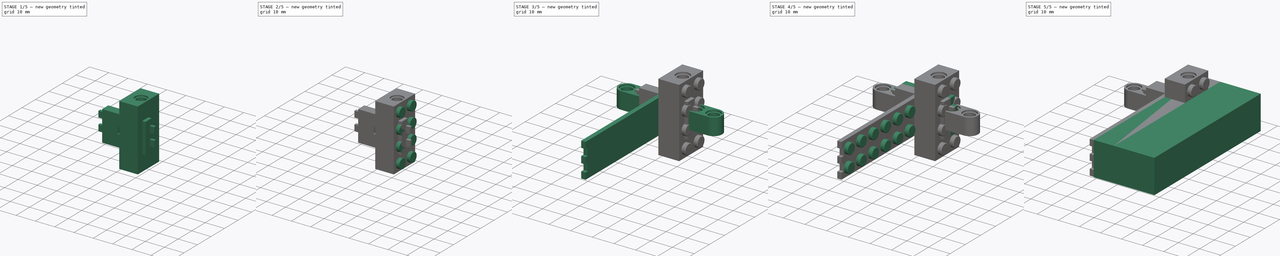
[diagram: build sequence overview — one tinted view per stage of 5, left to right]
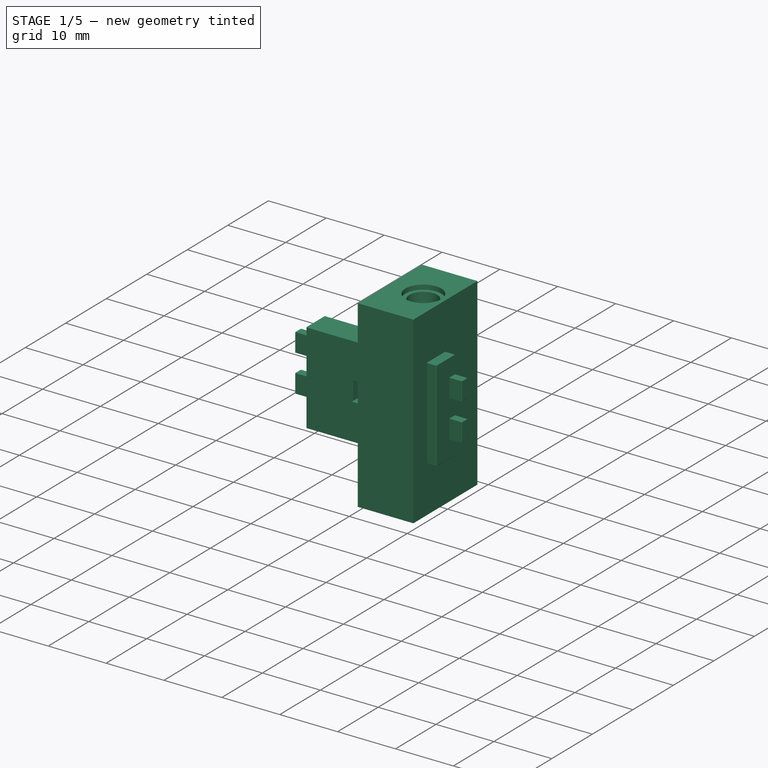
[diagram: stage 1 of 5 — iso view after this stage's code; geometry added in this stage tinted green]
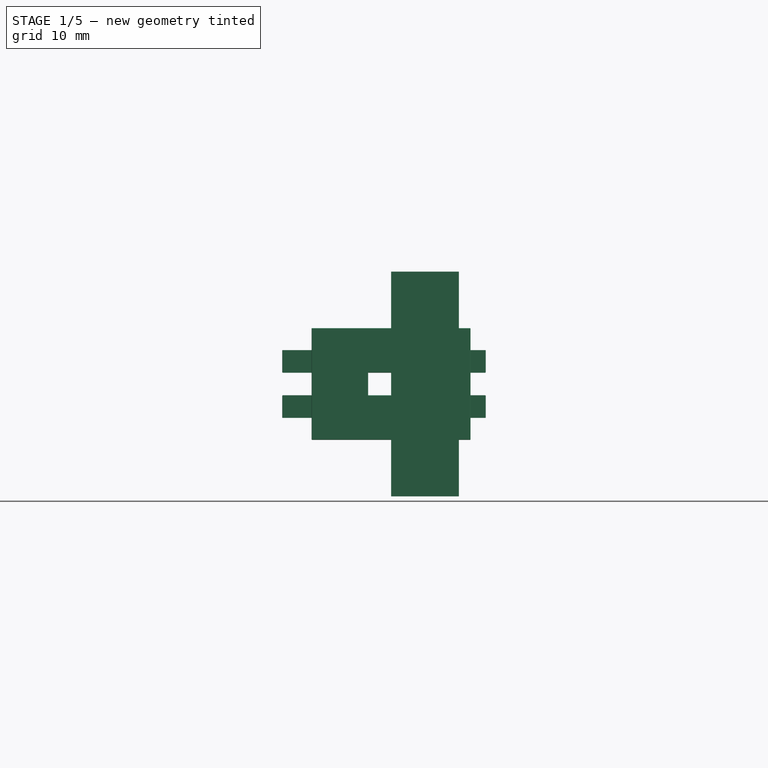
[diagram: stage 1 of 5 — front view after this stage's code; geometry added in this stage tinted green]
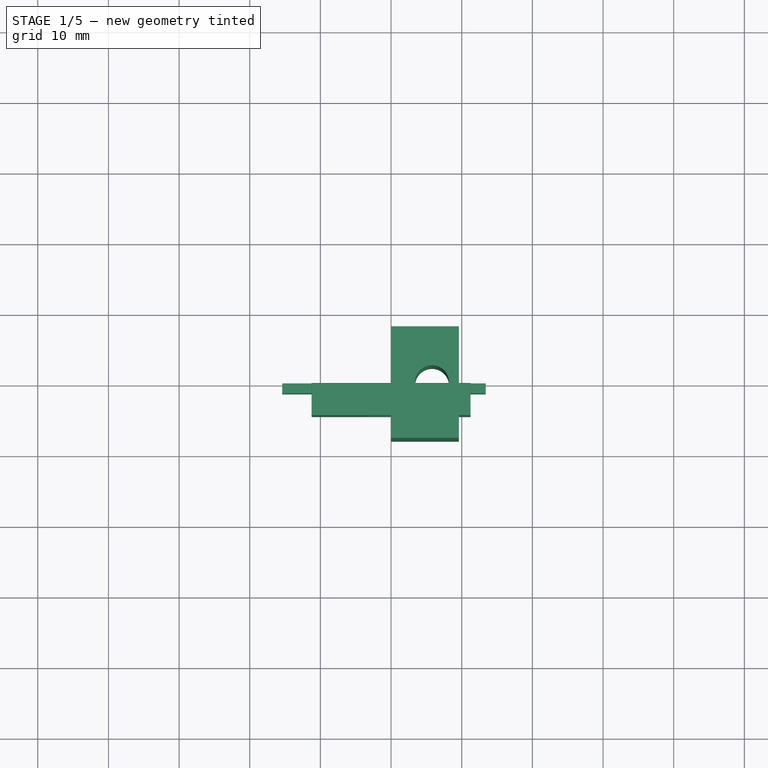
[diagram: stage 1 of 5 — top view after this stage's code; geometry added in this stage tinted green]
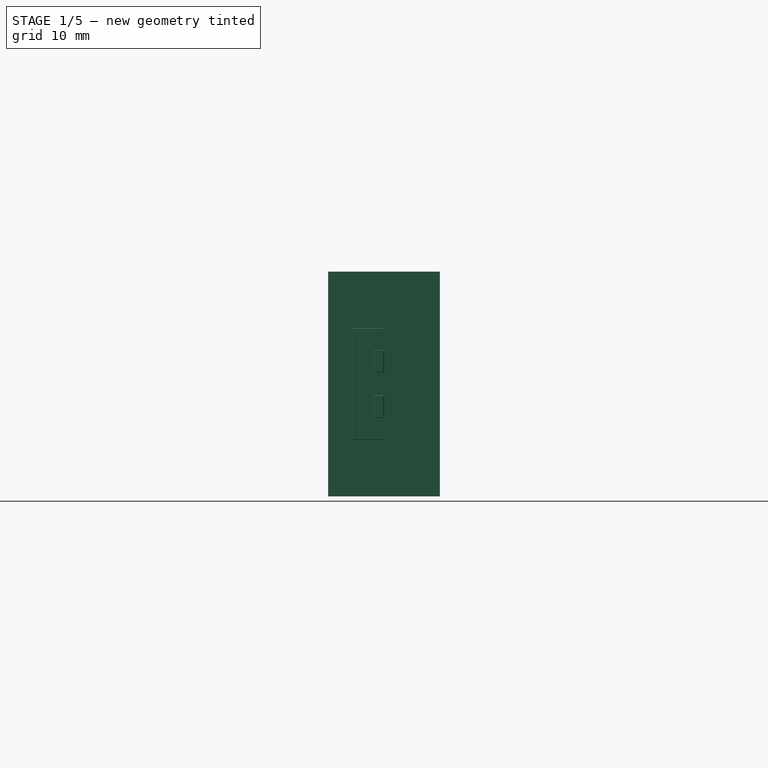
[diagram: stage 1 of 5 — right view after this stage's code; geometry added in this stage tinted green]
FCSTD DOCUMENT  (FreeCAD 0.18R4 (GitTag))
Label: Motor Case
License: All rights reserved
LicenseURL: http://en.wikipedia.org/wiki/All_rights_reserved
objects: Sketcher::SketchObject×30, PartDesign::Pad×18, PartDesign::Pocket×12, PartDesign::LinearPattern×10, Part::Feature×9, PartDesign::Body×8, PartDesign::Fillet×8, PartDesign::Mirrored×7, PartDesign::MultiTransform×5, App::Part×1, PartDesign::ShapeBinder×1, Spreadsheet::Sheet×1
note: 138 computed .brp shape members not serialized (recipe doc carries the construction recipe); baked Part::Feature solids carry a one-line shape summary decoded from their .brp

FEATURE [Sketcher::SketchObject] Sketch004
  MapMode = 5
  Placement = pos=(0,0,0) rot=(1,0,0;1.5708rad)
  Support = -> [XZ_Plane003]
  sketch-geometry (4):
    g0: LineSegment StartX=-11.25 StartY=7.9 StartZ=0 EndX=11.25 EndY=7.9 EndZ=0
    g1: LineSegment StartX=11.25 StartY=7.9 StartZ=0 EndX=11.25 EndY=-7.9 EndZ=0
    g2: LineSegment StartX=11.25 StartY=-7.9 StartZ=0 EndX=-11.25 EndY=-7.9 EndZ=0
    g3: LineSegment StartX=-11.25 StartY=-7.9 StartZ=0 EndX=-11.25 EndY=7.9 EndZ=0
  constraints (11):
    c: Coincident(g0,g1)
    c: Coincident(g1,g2)
    c: Coincident(g2,g3)
    c: Coincident(g3,g0)
    c: Horizontal(g0)
    c: Horizontal(g2)
    c: Vertical(g1)
    c: DistanceX(g0,g0) = 22.5
    c: DistanceY(g3,g3) = 15.8
    c: Symmetric(g0,g1,g-1)
    c: Vertical(g3)
FEATURE [PartDesign::Pad] Pad003  label="Plate001"
  Length = 4.55
  Length2 = 100
  Placement = pos=(0,0,0) rot=(1,0,0;1.5708rad)
  Profile = -> Sketch004
  Type = 0
  expr: Length = 15.9 - 11.2 - 0.15
FEATURE [Sketcher::SketchObject] Sketch005
  MapMode = 5
  Placement = pos=(11.25,0,0) rot=(0.707107,0,0.707107;3.14159rad)
  Support = -> [Pad003]
  expr: Constraints[22] = val.wall_thick
  sketch-geometry (8):
    g0: LineSegment StartX=-4.8 StartY=0 StartZ=0 EndX=-1.6 EndY=0 EndZ=0
    g1: LineSegment StartX=-1.6 StartY=0 StartZ=0 EndX=-1.6 EndY=1.4 EndZ=0
    g2: LineSegment StartX=-1.6 StartY=1.4 StartZ=0 EndX=-4.8 EndY=1.4 EndZ=0
    g3: LineSegment StartX=-4.8 StartY=1.4 StartZ=0 EndX=-4.8 EndY=0 EndZ=0
    g4: LineSegment StartX=1.6 StartY=0 StartZ=0 EndX=4.8 EndY=0 EndZ=0
    g5: LineSegment StartX=4.8 StartY=0 StartZ=0 EndX=4.8 EndY=1.4 EndZ=0
    g6: LineSegment StartX=4.8 StartY=1.4 StartZ=0 EndX=1.6 EndY=1.4 EndZ=0
    g7: LineSegment StartX=1.6 StartY=1.4 StartZ=0 EndX=1.6 EndY=0 EndZ=0
  constraints (23):
    c: Coincident(g0,g1)
    c: Coincident(g1,g2)
    c: Coincident(g2,g3)
    c: Coincident(g3,g0)
    c: Horizontal(g0)
    c: Horizontal(g2)
    c: Vertical(g1)
    c: Vertical(g3)
    c: Coincident(g4,g5)
    c: Coincident(g5,g6)
    c: Coincident(g6,g7)
    c: Coincident(g7,g4)
    c: Horizontal(g4)
    c: Horizontal(g6)
    c: Vertical(g5)
    c: Vertical(g7)
    c: Equal(g2,g6)
    c: Equal(g7,g1)
    c: DistanceX(g0,g4) = 3.2
    c: DistanceX(g4,g4) = 3.2
    c: Symmetric(g1,g6,g-2)
    c: PointOnObject(g0,g-1)
    c: DistanceY(g5,g5) = 1.4
FEATURE [PartDesign::Pad] Pad004
  BaseFeature = -> Pad003
  Length = 2.15
  Length2 = 100
  Placement = pos=(0,0,0) rot=(1,0,0;1.5708rad)
  Profile = -> Sketch005
  Type = 0
FEATURE [Sketcher::SketchObject] Sketch007
  MapMode = 5
  Placement = pos=(-11.25,0,0) rot=(0.707107,0,-0.707107;3.14159rad)
  expr: Constraints[22] = val.wall_thick
  sketch-geometry (8):
    g0: LineSegment StartX=-4.8 StartY=0 StartZ=0 EndX=-1.6 EndY=0 EndZ=0
    g1: LineSegment StartX=-1.6 StartY=0 StartZ=0 EndX=-1.6 EndY=1.4 EndZ=0
    g2: LineSegment StartX=-1.6 StartY=1.4 StartZ=0 EndX=-4.8 EndY=1.4 EndZ=0
    g3: LineSegment StartX=-4.8 StartY=1.4 StartZ=0 EndX=-4.8 EndY=0 EndZ=0
    g4: LineSegment StartX=1.6 StartY=0 StartZ=0 EndX=4.8 EndY=0 EndZ=0
    g5: LineSegment StartX=4.8 StartY=0 StartZ=0 EndX=4.8 EndY=1.4 EndZ=0
    g6: LineSegment StartX=4.8 StartY=1.4 StartZ=0 EndX=1.6 EndY=1.4 EndZ=0
    g7: LineSegment StartX=1.6 StartY=1.4 StartZ=0 EndX=1.6 EndY=0 EndZ=0
  constraints (23):
    c: Coincident(g0,g1)
    c: Coincident(g1,g2)
    c: Coincident(g2,g3)
    c: Coincident(g3,g0)
    c: Horizontal(g0)
    c: Horizontal(g2)
    c: Vertical(g1)
    c: Vertical(g3)
    c: Coincident(g4,g5)
    c: Coincident(g5,g6)
    c: Coincident(g6,g7)
    c: Coincident(g7,g4)
    c: Horizontal(g4)
    c: Horizontal(g6)
    c: Vertical(g5)
    c: Vertical(g7)
    c: Symmetric(g1,g6,g-2)
    c: Equal(g4,g0)
    c: Equal(g1,g7)
    c: PointOnObject(g0,g-1)
    c: DistanceX(g0,g4) = 3.2
    c: DistanceX(g4,g4) = 3.2
    c: DistanceY(g5,g5) = 1.4
FEATURE [PartDesign::Pad] Pad005
  BaseFeature = -> Pad004
  Length = 4.15
  Length2 = 100
  Placement = pos=(0,0,0) rot=(1,0,0;1.5708rad)
  Profile = -> Sketch007
  Type = 0
FEATURE [Sketcher::SketchObject] Sketch014
  MapMode = 5
  Placement = pos=(0,0,0) rot=(-1,0,0;1.5708rad)
  Support = -> [Pad005]
  expr: Constraints[10] = 15.8mm - 2 * val.wall_thick
  expr: Constraints[9] = 15.8mm - 2 * val.wall_thick
  sketch-geometry (4):
    g0: LineSegment StartX=-6.5 StartY=6.5 StartZ=0 EndX=6.5 EndY=6.5 EndZ=0
    g1: LineSegment StartX=6.5 StartY=6.5 StartZ=0 EndX=6.5 EndY=-6.5 EndZ=0
    g2: LineSegment StartX=6.5 StartY=-6.5 StartZ=0 EndX=-6.5 EndY=-6.5 EndZ=0
    g3: LineSegment StartX=-6.5 StartY=-6.5 StartZ=0 EndX=-6.5 EndY=6.5 EndZ=0
  constraints (11):
    c: Coincident(g0,g1)
    c: Coincident(g1,g2)
    c: Coincident(g2,g3)
    c: Coincident(g3,g0)
    c: Horizontal(g0)
    c: Horizontal(g2)
    c: Vertical(g1)
    c: Vertical(g3)
    c: Symmetric(g1,g0,g-1)
    c: DistanceX(g0,g0) = 13
    c: DistanceY(g1,g1) = 13
FEATURE [PartDesign::Pocket] Pocket003
  BaseFeature = -> Pad005
  Length = 2.2
  Length2 = 100
  Placement = pos=(0,0,0) rot=(1,0,0;1.5708rad)
  Profile = -> Sketch014
  Type = 0
  expr: Length = val.pocket_depth
FEATURE [Sketcher::SketchObject] Sketch015
  MapMode = 5
  Placement = pos=(0,-2.2,2e-15) rot=(-1,0,0;1.5708rad)
  Support = -> [Pocket003]
  expr: Constraints[3] = val.tube_outer_dia / 2
  expr: Constraints[2] = val.tube_inner_dia / 2
  sketch-geometry (2):
    g0: Circle CenterX=0 CenterY=0 CenterZ=0 NormalX=0 NormalY=0 NormalZ=1 AngleXU=0 Radius=3.255
    g1: Circle CenterX=0 CenterY=0 CenterZ=0 NormalX=0 NormalY=0 NormalZ=1 AngleXU=0 Radius=2.45
  constraints (4):
    c: Coincident(g0,g1)
    c: Coincident(g0,g-1)
    c: Radius(g1) = 2.45
    c: Radius(g0) = 3.255
FEATURE [PartDesign::Pad] Pad011
  BaseFeature = -> Pocket003
  Length = 2.2
  Length2 = 100
  Placement = pos=(0,0,0) rot=(1,0,0;1.5708rad)
  Profile = -> Sketch015
  Type = 0
  expr: Length = val.pocket_depth
FEATURE [Sketcher::SketchObject] Sketch016
  MapMode = 5
  Placement = pos=(0,-4.55,2e-15) rot=(1,0,0;1.5708rad)
  Support = -> [Pad011]
  expr: Constraints[9] = val.tube_outer_dia
  sketch-geometry (4):
    g0: LineSegment StartX=-3.255 StartY=1.6 StartZ=0 EndX=3.255 EndY=1.6 EndZ=0
    g1: LineSegment StartX=3.255 StartY=1.6 StartZ=0 EndX=3.255 EndY=-1.6 EndZ=0
    g2: LineSegment StartX=3.255 StartY=-1.6 StartZ=0 EndX=-3.255 EndY=-1.6 EndZ=0
    g3: LineSegment StartX=-3.255 StartY=-1.6 StartZ=0 EndX=-3.255 EndY=1.6 EndZ=0
  constraints (11):
    c: Coincident(g0,g1)
    c: Coincident(g1,g2)
    c: Coincident(g2,g3)
    c: Coincident(g3,g0)
    c: Horizontal(g0)
    c: Horizontal(g2)
    c: Vertical(g1)
    c: Vertical(g3)
    c: Symmetric(g1,g0,g-1)
    c: DistanceX(g0,g0) = 6.51
    c: DistanceY(g1,g1) = 3.2
FEATURE [PartDesign::Pocket] Pocket004  label="Center Pocket"
  BaseFeature = -> Pad011
  Length = 5
  Length2 = 100
  Placement = pos=(0,0,0) rot=(1,0,0;1.5708rad)
  Profile = -> Sketch016
  Type = 0
FEATURE [PartDesign::Body] Body006  label="Technic Brick"
  Group = -> [Sketch025,Pad015,Sketch026,Pocket009,Sketch027,Pocket010,Mirrored004,Sketch028,Pad016,MultiTransform004,LinearPattern009,Mirrored005,Fillet009]
  Origin = -> Origin007
  Placement = pos=(-5.8,24,0) rot=(0,0,1;0rad)
  Tip = -> Fillet009
FEATURE [Sketcher::SketchObject] Sketch029
  MapMode = 5
  Placement = pos=(0,0,0) rot=(0.57735,0.57735,0.57735;2.0944rad)
  Support = -> [YZ_Plane008]
  sketch-geometry (4):
    g0: LineSegment StartX=-7.9 StartY=15.9 StartZ=0 EndX=7.9 EndY=15.9 EndZ=0
    g1: LineSegment StartX=7.9 StartY=15.9 StartZ=0 EndX=7.9 EndY=-15.9 EndZ=0
    g2: LineSegment StartX=7.9 StartY=-15.9 StartZ=0 EndX=-7.9 EndY=-15.9 EndZ=0
    g3: LineSegment StartX=-7.9 StartY=-15.9 StartZ=0 EndX=-7.9 EndY=15.9 EndZ=0
  constraints (11):
    c: Coincident(g0,g1)
    c: Coincident(g1,g2)
    c: Coincident(g2,g3)
    c: Coincident(g3,g0)
    c: Horizontal(g0)
    c: Horizontal(g2)
    c: Vertical(g1)
    c: Vertical(g3)
    c: Symmetric(g2,g0,g-1)
    c: DistanceX(g0,g0) = 15.8
    c: DistanceY(g3,g3) = 31.8
FEATURE [PartDesign::Pad] Pad017  label="Brick002"
  Length = 9.6
  Length2 = 100
  Placement = pos=(0,0,0) rot=(0.57735,0.57735,0.57735;2.0944rad)
  Profile = -> Sketch029
  Type = 0
FEATURE [Sketcher::SketchObject] Sketch031
  MapMode = 5
  Placement = pos=(-4.5e-15,7e-15,15.9) rot=(0,0,-1;1.5708rad)
  Support = -> [Pad017]
  expr: Constraints[2] = 4.8 / 2
  sketch-geometry (1):
    g0: Circle CenterX=0 CenterY=5.8 CenterZ=0 NormalX=0 NormalY=0 NormalZ=1 AngleXU=0 Radius=2.4
  constraints (3):
    c: PointOnObject(g0,g-2)
    c: DistanceY(g0) = 5.8
    c: Radius(g0) = 2.4
FEATURE [PartDesign::Pocket] Pocket011  label="Hole002"
  BaseFeature = -> Pad017
  Length = 31.8
  Length2 = 100
  Placement = pos=(0,0,0) rot=(0.57735,0.57735,0.57735;2.0944rad)
  Profile = -> Sketch031
  Type = 0
FEATURE [Sketcher::SketchObject] Sketch030
  MapMode = 5
  Placement = pos=(-4.5e-15,7e-15,15.9) rot=(0,0,-1;1.5708rad)
  Support = -> [Pocket011]
  expr: Constraints[2] = 6.2 / 2
  sketch-geometry (1):
    g0: Circle CenterX=0 CenterY=5.8 CenterZ=0 NormalX=0 NormalY=0 NormalZ=1 AngleXU=0 Radius=3.1
  constraints (3):
    c: PointOnObject(g0,g-2)
    c: DistanceY(g0) = 5.8
    c: Radius(g0) = 3.1
FEATURE [PartDesign::Pocket] Pocket012
  BaseFeature = -> Pocket011
  Length = 0.8
  Length2 = 100
  Placement = pos=(0,0,0) rot=(0.57735,0.57735,0.57735;2.0944rad)
  Profile = -> Sketch030
  Type = 0
FEATURE [PartDesign::Body] Body007  label="Technic Brick001"
  Group = -> [Sketch029,Pad017,Sketch031,Pocket011,Sketch030,Pocket012,Mirrored007,Sketch032,Pad018,MultiTransform005,LinearPattern010,Mirrored006,Fillet010]
  Origin = -> Origin008
  Placement = pos=(-15.4,24,0) rot=(0,0,1;0rad)
  Tip = -> Fillet010
FEATURE [Spreadsheet::Sheet] Spreadsheet  label="val"
  cells = A2=Lego Standard Dimensions; A3=Plate Play; B3(plate_play)==0.1mm; A4=Plate Height; B4(plate_height)==3.2mm; A5=Knob Diameter; B5(knob_dia)==4.9mm; A6=Knob Height; B6(knob_height)==1.8mm; A7=Pocket Depth; B7(pocket_depth)==2.2mm; A8=Wall Thickness; B8(wall_thick)==1.4mm; A9=Tube Inner Diameter; B9(tube_inner_dia)==4.9mm; A10=Tube Outer Diameter; B10(tube_outer_dia)==6.51mm
FEATURE [PartDesign::Fillet] Fillet007
  Base = -> Pocket004 [Face1,Face12,Face30,Face27,Face38,Face29,Face28,Face42,Face5,Face33,Face34,Face32,Face31,Face25,Face24,Face26,Face23,Face36,Face40]
  BaseFeature = -> Pocket004
  Placement = pos=(0,0,0) rot=(1,0,0;1.5708rad)
  Radius = 0.08
FEATURE [PartDesign::Body] Body002  label="Gear Plate"
  Group = -> [Sketch004,Pad003,Sketch005,Pad004,Sketch007,Pad005,Sketch014,Pocket003,Sketch015,Pad011,Sketch016,Pocket004,Fillet007]
  Origin = -> Origin003
  Placement = pos=(0,15.9,0) rot=(0,0,1;0rad)
  Tip = -> Fillet007
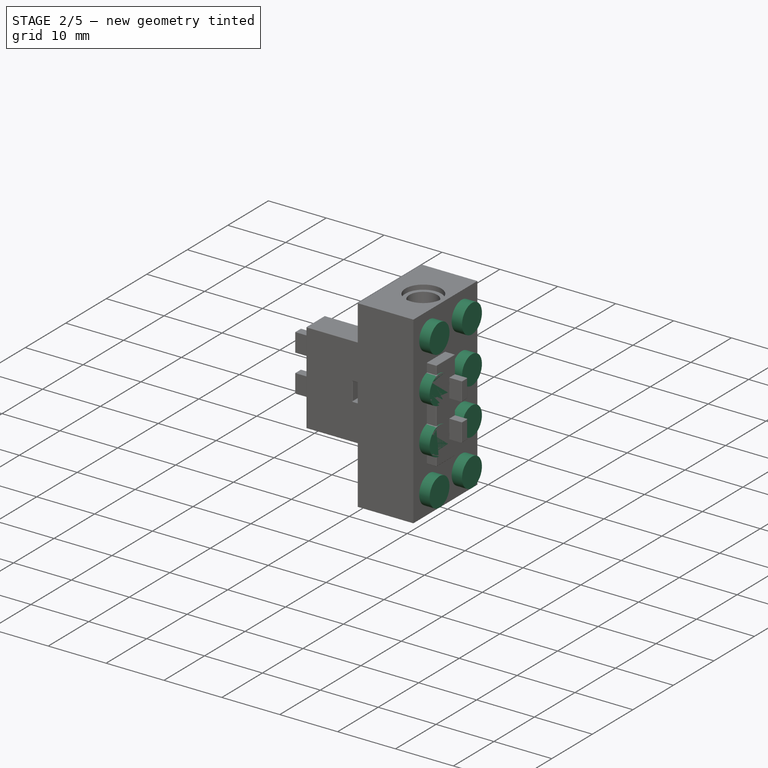
[diagram: stage 2 of 5 — iso view after this stage's code; geometry added in this stage tinted green]
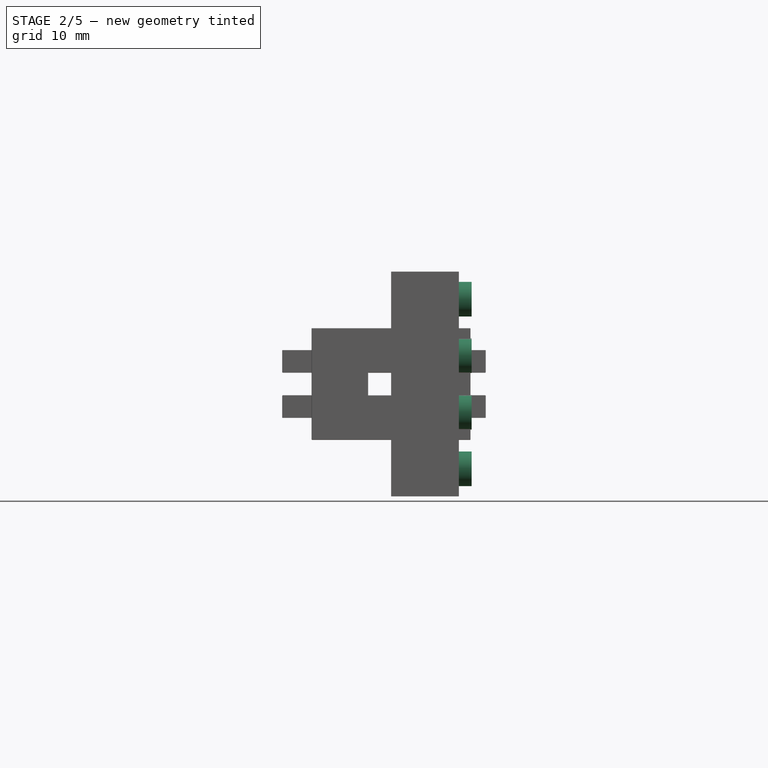
[diagram: stage 2 of 5 — front view after this stage's code; geometry added in this stage tinted green]
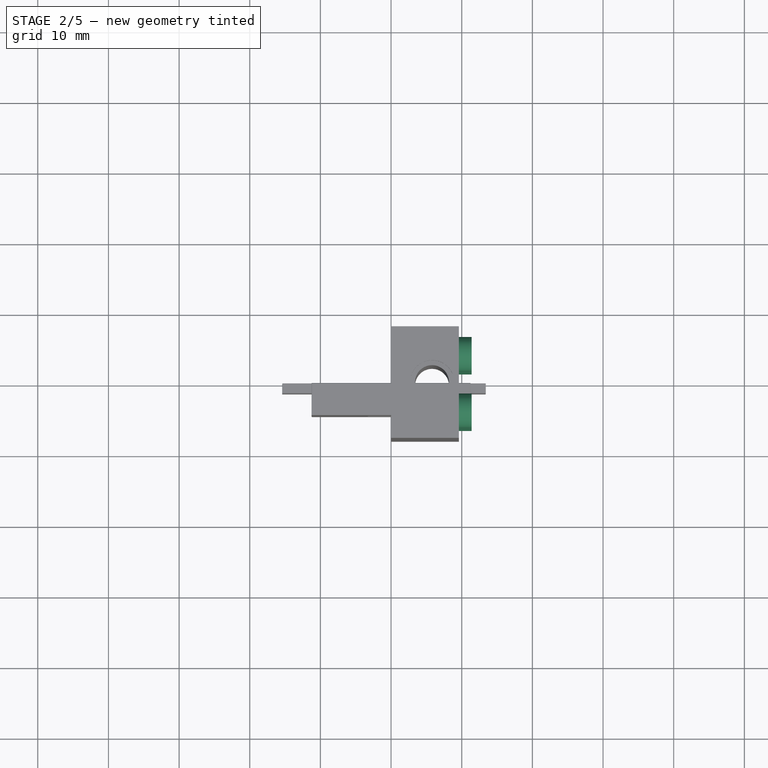
[diagram: stage 2 of 5 — top view after this stage's code; geometry added in this stage tinted green]
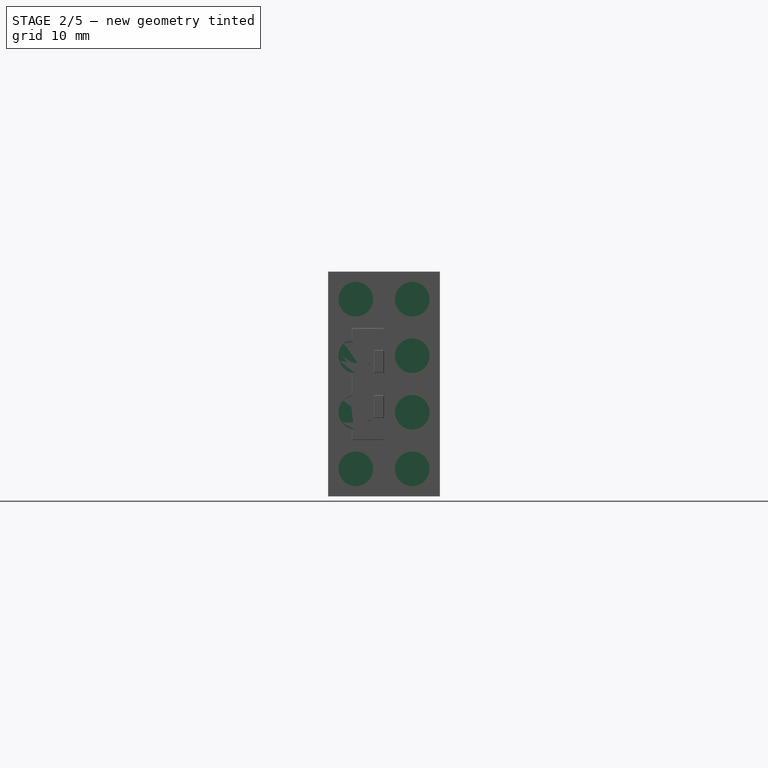
[diagram: stage 2 of 5 — right view after this stage's code; geometry added in this stage tinted green]
FEATURE [PartDesign::Body] Body005  label="Technic Arm"
  Group = -> [Sketch021,Pad014,Sketch022,Pocket007,LinearPattern007,Sketch023,Pocket008,MultiTransform003,LinearPattern008,Mirrored003]
  Origin = -> Origin006
  Placement = pos=(0,20,20) rot=(0,0,1;1.5708rad)
  Tip = -> MultiTransform003
FEATURE [Sketcher::SketchObject] Sketch025
  MapMode = 5
  Placement = pos=(0,0,0) rot=(0.57735,0.57735,0.57735;2.0944rad)
  Support = -> [YZ_Plane007]
  sketch-geometry (4):
    g0: LineSegment StartX=-7.9 StartY=15.9 StartZ=0 EndX=7.9 EndY=15.9 EndZ=0
    g1: LineSegment StartX=7.9 StartY=15.9 StartZ=0 EndX=7.9 EndY=-15.9 EndZ=0
    g2: LineSegment StartX=7.9 StartY=-15.9 StartZ=0 EndX=-7.9 EndY=-15.9 EndZ=0
    g3: LineSegment StartX=-7.9 StartY=-15.9 StartZ=0 EndX=-7.9 EndY=15.9 EndZ=0
  constraints (11):
    c: Coincident(g0,g1)
    c: Coincident(g1,g2)
    c: Coincident(g2,g3)
    c: Coincident(g3,g0)
    c: Horizontal(g0)
    c: Horizontal(g2)
    c: Vertical(g1)
    c: Vertical(g3)
    c: Symmetric(g2,g0,g-1)
    c: DistanceX(g0,g0) = 15.8
    c: DistanceY(g3,g3) = 31.8
FEATURE [PartDesign::Pad] Pad015  label="Brick001"
  Length = 9.6
  Length2 = 100
  Placement = pos=(0,0,0) rot=(0.57735,0.57735,0.57735;2.0944rad)
  Profile = -> Sketch025
  Type = 0
FEATURE [Sketcher::SketchObject] Sketch026
  MapMode = 5
  Placement = pos=(-4.5e-15,7e-15,15.9) rot=(0,0,-1;1.5708rad)
  Support = -> [Pad015]
  expr: Constraints[2] = 4.8 / 2
  sketch-geometry (1):
    g0: Circle CenterX=0 CenterY=5.8 CenterZ=0 NormalX=0 NormalY=0 NormalZ=1 AngleXU=0 Radius=2.4
  constraints (3):
    c: PointOnObject(g0,g-2)
    c: DistanceY(g0) = 5.8
    c: Radius(g0) = 2.4
FEATURE [PartDesign::Pocket] Pocket009  label="Hole001"
  BaseFeature = -> Pad015
  Length = 31.8
  Length2 = 100
  Placement = pos=(0,0,0) rot=(0.57735,0.57735,0.57735;2.0944rad)
  Profile = -> Sketch026
  Type = 0
FEATURE [Sketcher::SketchObject] Sketch027
  MapMode = 5
  Placement = pos=(-4.5e-15,7e-15,15.9) rot=(0,0,-1;1.5708rad)
  Support = -> [Pocket009]
  expr: Constraints[2] = 6.2 / 2
  sketch-geometry (1):
    g0: Circle CenterX=0 CenterY=5.8 CenterZ=0 NormalX=0 NormalY=0 NormalZ=1 AngleXU=0 Radius=3.1
  constraints (3):
    c: PointOnObject(g0,g-2)
    c: DistanceY(g0) = 5.8
    c: Radius(g0) = 3.1
FEATURE [PartDesign::Pocket] Pocket010
  BaseFeature = -> Pocket009
  Length = 0.8
  Length2 = 100
  Placement = pos=(0,0,0) rot=(0.57735,0.57735,0.57735;2.0944rad)
  Profile = -> Sketch027
  Type = 0
FEATURE [PartDesign::Mirrored] Mirrored004
  BaseFeature = -> Pocket010
  MirrorPlane = -> XY_Plane007
  Originals = -> [Pocket010]
  Placement = pos=(0,0,0) rot=(0.57735,0.57735,0.57735;2.0944rad)
FEATURE [Sketcher::SketchObject] Sketch028
  MapMode = 5
  Placement = pos=(9.6,-2.1e-15,2.1e-15) rot=(0.57735,0.57735,0.57735;2.0944rad)
  Support = -> [Mirrored004]
  expr: Constraints[0] = 4.9 / 2
  sketch-geometry (1):
    g0: Circle CenterX=4 CenterY=12 CenterZ=0 NormalX=0 NormalY=0 NormalZ=1 AngleXU=0 Radius=2.45
  constraints (3):
    c: Radius(g0) = 2.45
    c: DistanceX(g0) = 4
    c: DistanceY(g0) = 12
FEATURE [PartDesign::Pad] Pad016  label="Knob003"
  BaseFeature = -> Mirrored004
  Length = 1.8
  Length2 = 100
  Placement = pos=(0,0,0) rot=(0.57735,0.57735,0.57735;2.0944rad)
  Profile = -> Sketch028
  Type = 0
FEATURE [PartDesign::LinearPattern] LinearPattern009
  Direction = -> Sketch028 [V_Axis]
  Length = 24
  Occurrences = 4
  Placement = pos=(0,0,0) rot=(0.57735,0.57735,0.57735;2.0944rad)
  Reversed = true
FEATURE [PartDesign::Mirrored] Mirrored005
  MirrorPlane = -> XZ_Plane007
  Placement = pos=(0,0,0) rot=(0.57735,0.57735,0.57735;2.0944rad)
FEATURE [PartDesign::MultiTransform] MultiTransform004
  BaseFeature = -> Pad016
  Originals = -> [Pad016]
  Placement = pos=(0,0,0) rot=(0.57735,0.57735,0.57735;2.0944rad)
  Transformations = -> [LinearPattern009,Mirrored005]
FEATURE [PartDesign::Mirrored] Mirrored006
  MirrorPlane = -> XZ_Plane008
  Placement = pos=(0,0,0) rot=(0.57735,0.57735,0.57735;2.0944rad)
FEATURE [PartDesign::Mirrored] Mirrored007
  BaseFeature = -> Pocket012
  MirrorPlane = -> XY_Plane008
  Originals = -> [Pocket012]
  Placement = pos=(0,0,0) rot=(0.57735,0.57735,0.57735;2.0944rad)
FEATURE [Sketcher::SketchObject] Sketch032
  MapMode = 5
  Placement = pos=(9.6,-2.1e-15,2.1e-15) rot=(0.57735,0.57735,0.57735;2.0944rad)
  Support = -> [Mirrored007]
  expr: Constraints[0] = 4.9 / 2
  sketch-geometry (1):
    g0: Circle CenterX=4 CenterY=12 CenterZ=0 NormalX=0 NormalY=0 NormalZ=1 AngleXU=0 Radius=2.45
  constraints (3):
    c: Radius(g0) = 2.45
    c: DistanceX(g0) = 4
    c: DistanceY(g0) = 12
FEATURE [PartDesign::Pad] Pad018  label="Knob004"
  BaseFeature = -> Mirrored007
  Length = 1.8
  Length2 = 100
  Placement = pos=(0,0,0) rot=(0.57735,0.57735,0.57735;2.0944rad)
  Profile = -> Sketch032
  Type = 0
FEATURE [PartDesign::LinearPattern] LinearPattern010
  Direction = -> Sketch032 [V_Axis]
  Length = 24
  Occurrences = 4
  Placement = pos=(0,0,0) rot=(0.57735,0.57735,0.57735;2.0944rad)
  Reversed = true
FEATURE [PartDesign::MultiTransform] MultiTransform005
  BaseFeature = -> Pad018
  Originals = -> [Pad018]
  Placement = pos=(0,0,0) rot=(0.57735,0.57735,0.57735;2.0944rad)
  Transformations = -> [LinearPattern010,Mirrored006]
FEATURE [PartDesign::Fillet] Fillet010
  Base = -> MultiTransform005 [Face25,Face24,Face22,Face23,Face19,Face18,Face21,Face20]
  BaseFeature = -> MultiTransform005
  Placement = pos=(0,0,0) rot=(0.57735,0.57735,0.57735;2.0944rad)
  Radius = 0.32
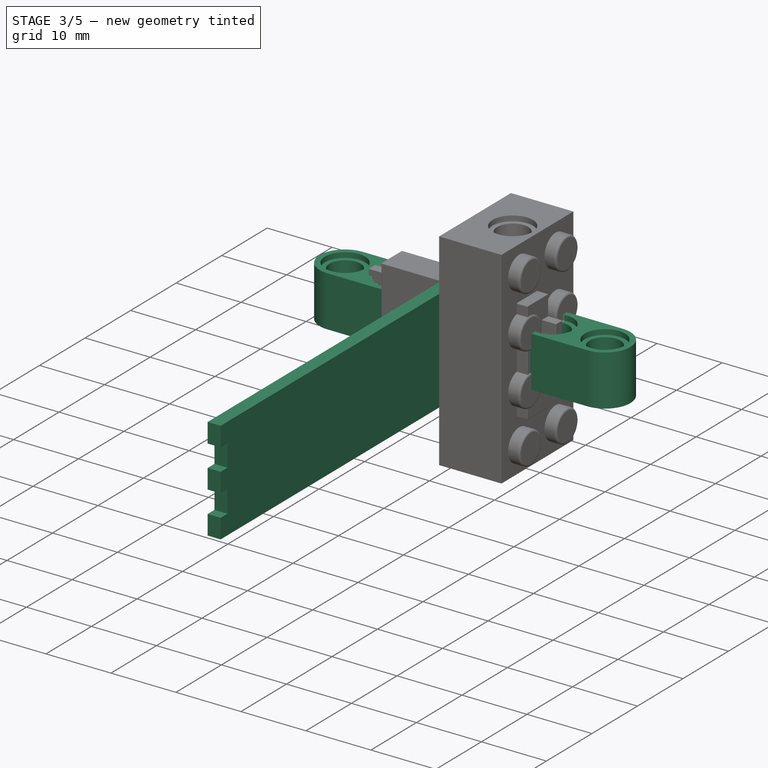
[diagram: stage 3 of 5 — iso view after this stage's code; geometry added in this stage tinted green]
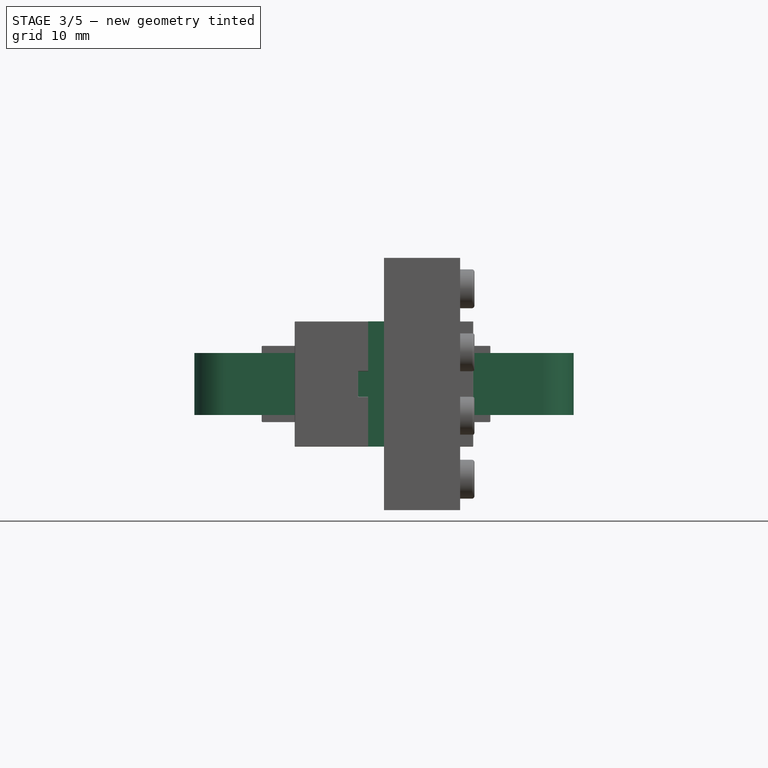
[diagram: stage 3 of 5 — front view after this stage's code; geometry added in this stage tinted green]
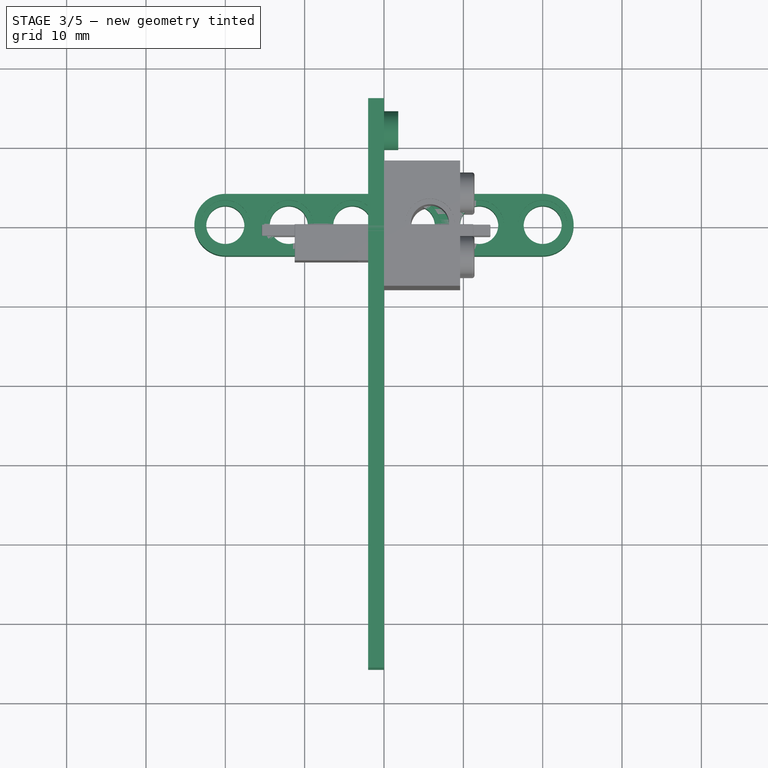
[diagram: stage 3 of 5 — top view after this stage's code; geometry added in this stage tinted green]
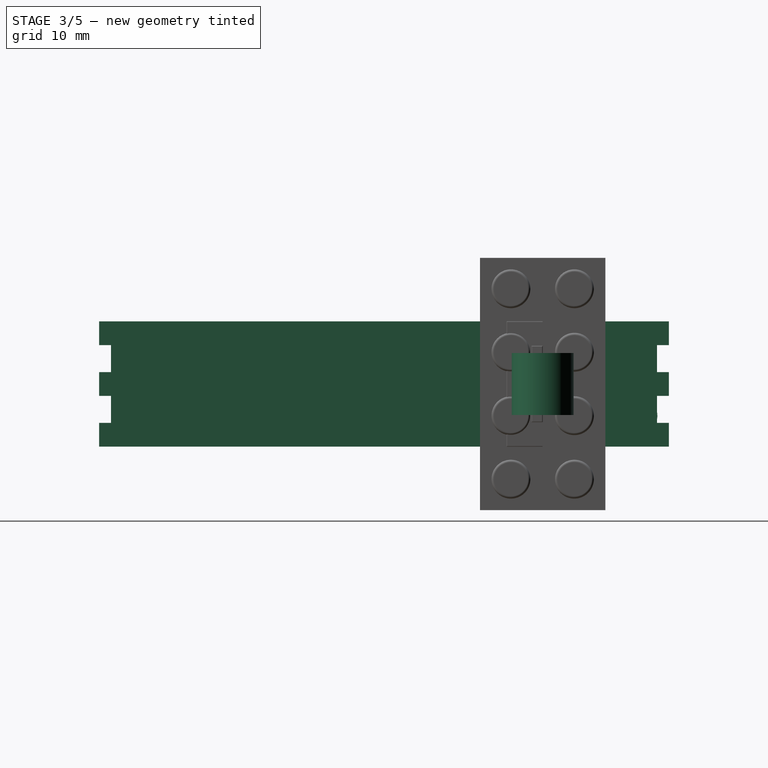
[diagram: stage 3 of 5 — right view after this stage's code; geometry added in this stage tinted green]
FEATURE [Sketcher::SketchObject] Sketch001
  MapMode = 5
  Placement = pos=(0,0,0) rot=(0.57735,0.57735,0.57735;2.0944rad)
  Support = -> [YZ_Plane002]
  sketch-geometry (4):
    g0: LineSegment StartX=-55.9 StartY=7.9 StartZ=0 EndX=15.9 EndY=7.9 EndZ=0
    g1: LineSegment StartX=15.9 StartY=7.9 StartZ=0 EndX=15.9 EndY=-7.9 EndZ=0
    g2: LineSegment StartX=15.9 StartY=-7.9 StartZ=0 EndX=-55.9 EndY=-7.9 EndZ=0
    g3: LineSegment StartX=-55.9 StartY=-7.9 StartZ=0 EndX=-55.9 EndY=7.9 EndZ=0
  constraints (11):
    c: Coincident(g0,g1)
    c: Coincident(g1,g2)
    c: Coincident(g2,g3)
    c: Coincident(g3,g0)
    c: Horizontal(g0)
    c: Horizontal(g2)
    c: Vertical(g3)
    c: Symmetric(g0,g1,g-1)
    c: DistanceY(g1,g1) = 15.8
    c: DistanceX(g0,g0) = 71.8
    c: DistanceX(g-1,g1) = 15.9
FEATURE [PartDesign::Pad] Pad001  label="Plate"
  Length = 2
  Length2 = 100
  Placement = pos=(0,0,0) rot=(0.57735,0.57735,0.57735;2.0944rad)
  Profile = -> Sketch001
  Reversed = true
  Type = 0
FEATURE [PartDesign::ShapeBinder] CopyPad001
  TraceSupport = false
FEATURE [PartDesign::Body] Body  label="Concept Bricks"
  Group = -> [Pad,Sketch,LinearPattern,CopyPad001]
  Origin = -> Origin001
  Placement = pos=(-15.4,0,0) rot=(0,0,1;0rad)
  Tip = -> LinearPattern
FEATURE [Sketcher::SketchObject] Sketch002
  MapMode = 5
  Placement = pos=(0,0,0) rot=(0.57735,0.57735,0.57735;2.0944rad)
  Support = -> [Pad001]
  expr: Constraints[17] = val.wall_thick + 0.1mm
  sketch-geometry (8):
    g0: LineSegment StartX=15.9 StartY=4.9 StartZ=0 EndX=14.4 EndY=4.9 EndZ=0
    g1: LineSegment StartX=14.4 StartY=4.9 StartZ=0 EndX=14.4 EndY=1.5 EndZ=0
    g2: LineSegment StartX=14.4 StartY=1.5 StartZ=0 EndX=15.9 EndY=1.5 EndZ=0
    g3: LineSegment StartX=15.9 StartY=1.5 StartZ=0 EndX=15.9 EndY=4.9 EndZ=0
    g4: LineSegment StartX=15.9 StartY=-1.5 StartZ=0 EndX=14.4 EndY=-1.5 EndZ=0
    g5: LineSegment StartX=14.4 StartY=-1.5 StartZ=0 EndX=14.4 EndY=-4.9 EndZ=0
    g6: LineSegment StartX=14.4 StartY=-4.9 StartZ=0 EndX=15.9 EndY=-4.9 EndZ=0
    g7: LineSegment StartX=15.9 StartY=-4.9 StartZ=0 EndX=15.9 EndY=-1.5 EndZ=0
  constraints (22):
    c: Coincident(g0,g1)
    c: Coincident(g1,g2)
    c: Coincident(g2,g3)
    c: Coincident(g3,g0)
    c: Horizontal(g0)
    c: Horizontal(g2)
    c: Vertical(g1)
    c: Vertical(g3)
    c: Coincident(g4,g5)
    c: Coincident(g5,g6)
    c: Coincident(g6,g7)
    c: Coincident(g7,g4)
    c: Horizontal(g4)
    c: Vertical(g5)
    c: DistanceX(g-1,g0) = 15.9
    c: Symmetric(g2,g4,g-1)
    c: Symmetric(g6,g0,g-1)
    c: DistanceX(g0,g0) = 1.5
    c: DistanceY(g5,g5) = 3.4
    c: Equal(g4,g2)
    c: Horizontal(g6)
    c: DistanceY(g4,g1) = 3
FEATURE [PartDesign::Pocket] Pocket
  BaseFeature = -> Pad001
  Length = 5
  Length2 = 100
  Placement = pos=(0,0,0) rot=(0.57735,0.57735,0.57735;2.0944rad)
  Profile = -> Sketch002
  Type = 0
FEATURE [PartDesign::LinearPattern] LinearPattern001  label="LinearPattern011"
  BaseFeature = -> Pocket
  Direction = -> Sketch002 [H_Axis]
  Length = 70.3
  Occurrences = 2
  Originals = -> [Pocket]
  Placement = pos=(0,0,0) rot=(0.57735,0.57735,0.57735;2.0944rad)
  Reversed = true
  expr: Length = 71.8 - 1.5
FEATURE [Sketcher::SketchObject] Sketch003
  MapMode = 5
  Placement = pos=(0,0,0) rot=(0.57735,0.57735,0.57735;2.0944rad)
  Support = -> [LinearPattern001]
  expr: Constraints[0] = val.knob_dia / 2
  sketch-geometry (1):
    g0: Circle CenterX=12 CenterY=-4 CenterZ=0 NormalX=0 NormalY=0 NormalZ=1 AngleXU=0 Radius=2.45
  constraints (3):
    c: Radius(g0) = 2.45
    c: DistanceX(g-1,g0) = 12
    c: DistanceY(g0,g-1) = 4
FEATURE [PartDesign::Pad] Pad002  label="Knob"
  BaseFeature = -> LinearPattern001
  Length = 1.8
  Length2 = 100
  Placement = pos=(0,0,0) rot=(0.57735,0.57735,0.57735;2.0944rad)
  Profile = -> Sketch003
  Type = 0
  expr: Length = val.knob_height
FEATURE [PartDesign::Body] Body001  label="Top Plate"
  Group = -> [Sketch001,Pad001,Pocket,LinearPattern001,Sketch002,Sketch003,Pad002,MultiTransform,LinearPattern002,Mirrored,Fillet,Fillet008]
  Origin = -> Origin002
  Placement = pos=(13.4,0,0) rot=(0,0,1;0rad)
  Tip = -> Fillet008
FEATURE [Sketcher::SketchObject] Sketch021
  MapMode = 5
  Support = -> [XY_Plane006]
  sketch-geometry (6):
    g0: LineSegment StartX=-20 StartY=3.9 StartZ=0 EndX=20 EndY=3.9 EndZ=0
    g1: LineSegment StartX=20 StartY=-3.9 StartZ=0 EndX=-20 EndY=-3.9 EndZ=0
    g2: ArcOfCircle CenterX=-20 CenterY=5e-16 CenterZ=0 NormalX=0 NormalY=0 NormalZ=1 AngleXU=0 Radius=3.9 StartAngle=1.5708 EndAngle=4.71239
    g3: ArcOfCircle CenterX=20 CenterY=5e-16 CenterZ=0 NormalX=0 NormalY=0 NormalZ=1 AngleXU=0 Radius=3.9 StartAngle=4.71239 EndAngle=7.85398
    g4: LineSegment [constr] StartX=-20 StartY=3.9 StartZ=0 EndX=-20 EndY=-3.9 EndZ=0
    g5: LineSegment [constr] StartX=20 StartY=3.9 StartZ=0 EndX=20 EndY=-3.9 EndZ=0
  constraints (17):
    c: Coincident(g2,g1)
    c: Coincident(g3,g0)
    c: Coincident(g1,g3)
    c: Coincident(g0,g2)
    c: Symmetric(g1,g0,g-1)
    c: Equal(g2,g3)
    c: Horizontal(g0)
    c: DistanceX(g2,g3) = 40
    c: DistanceY(g1,g0) = 7.8
    c: Coincident(g4,g1)
    c: Coincident(g4,g0)
    c: Vertical(g4)
    c: Coincident(g1,g5)
    c: Coincident(g0,g5)
    c: PointOnObject(g3,g5)
    c: Vertical(g5)
    c: PointOnObject(g2,g4)
FEATURE [PartDesign::Pad] Pad014  label="6x Arm"
  Length = 7.8
  Length2 = 100
  Midplane = true
  Profile = -> Sketch021
  Type = 0
FEATURE [Sketcher::SketchObject] Sketch022
  MapMode = 5
  Placement = pos=(0,0,3.9) rot=(0,0,1;0rad)
  Support = -> [Pad014]
  expr: Constraints[2] = 4.8 / 2
  sketch-geometry (1):
    g0: Circle CenterX=20 CenterY=0 CenterZ=0 NormalX=0 NormalY=0 NormalZ=1 AngleXU=0 Radius=2.4
  constraints (3):
    c: PointOnObject(g0,g-1)
    c: DistanceX(g0) = 20
    c: Radius(g0) = 2.4
FEATURE [PartDesign::Pocket] Pocket007  label="Hole"
  BaseFeature = -> Pad014
  Length = 7.8
  Length2 = 100
  Profile = -> Sketch022
  Type = 0
FEATURE [PartDesign::LinearPattern] LinearPattern007
  BaseFeature = -> Pocket007
  Direction = -> Sketch022 [H_Axis]
  Length = 40
  Occurrences = 6
  Originals = -> [Pocket007]
  Reversed = true
FEATURE [Sketcher::SketchObject] Sketch023
  MapMode = 5
  Placement = pos=(0,0,3.9) rot=(0,0,1;0rad)
  Support = -> [LinearPattern007]
  expr: Constraints[2] = 6.2 / 2
  sketch-geometry (1):
    g0: Circle CenterX=20 CenterY=0 CenterZ=0 NormalX=0 NormalY=0 NormalZ=1 AngleXU=0 Radius=3.1
  constraints (3):
    c: PointOnObject(g0,g-1)
    c: DistanceX(g0) = 20
    c: Radius(g0) = 3.1
FEATURE [PartDesign::Pocket] Pocket008
  BaseFeature = -> LinearPattern007
  Length = 0.8
  Length2 = 100
  Profile = -> Sketch023
  Type = 0
FEATURE [PartDesign::LinearPattern] LinearPattern008
  Direction = -> Sketch023 [H_Axis]
  Length = 40
  Occurrences = 6
  Reversed = true
FEATURE [PartDesign::Mirrored] Mirrored003
  MirrorPlane = -> XY_Plane006
FEATURE [PartDesign::MultiTransform] MultiTransform003
  BaseFeature = -> Pocket008
  Originals = -> [Pocket008]
  Transformations = -> [LinearPattern008,Mirrored003]
FEATURE [PartDesign::Fillet] Fillet009
  Base = -> MultiTransform004 [Face25,Face24,Face22,Face23,Face19,Face18,Face21,Face20]
  BaseFeature = -> MultiTransform004
  Placement = pos=(0,0,0) rot=(0.57735,0.57735,0.57735;2.0944rad)
  Radius = 0.32
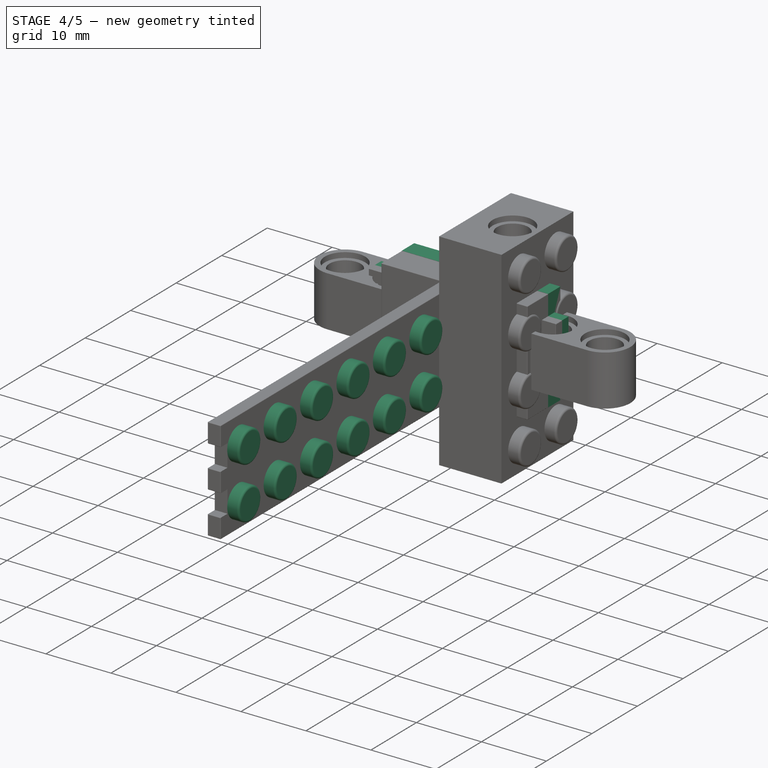
[diagram: stage 4 of 5 — iso view after this stage's code; geometry added in this stage tinted green]
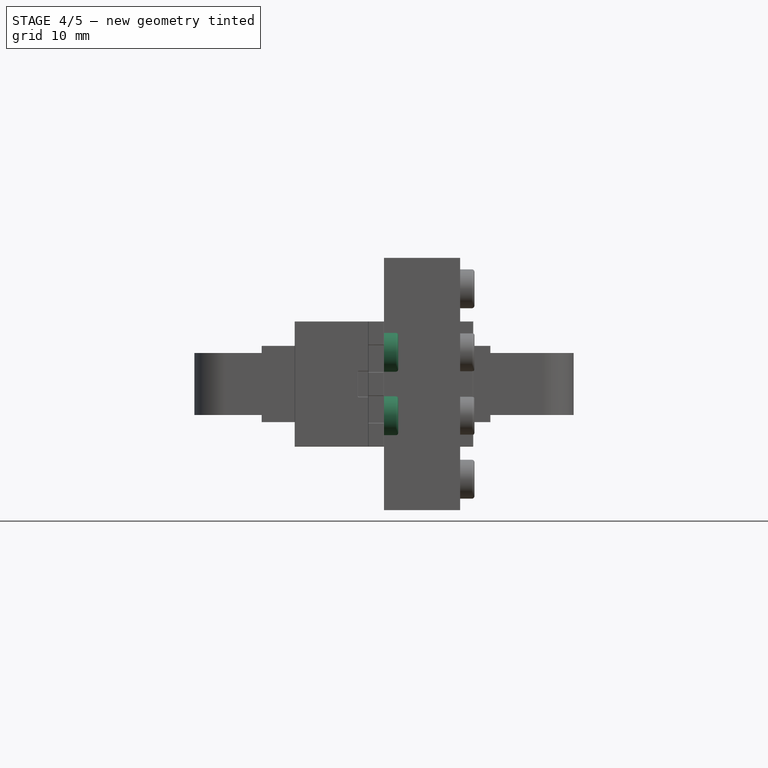
[diagram: stage 4 of 5 — front view after this stage's code; geometry added in this stage tinted green]
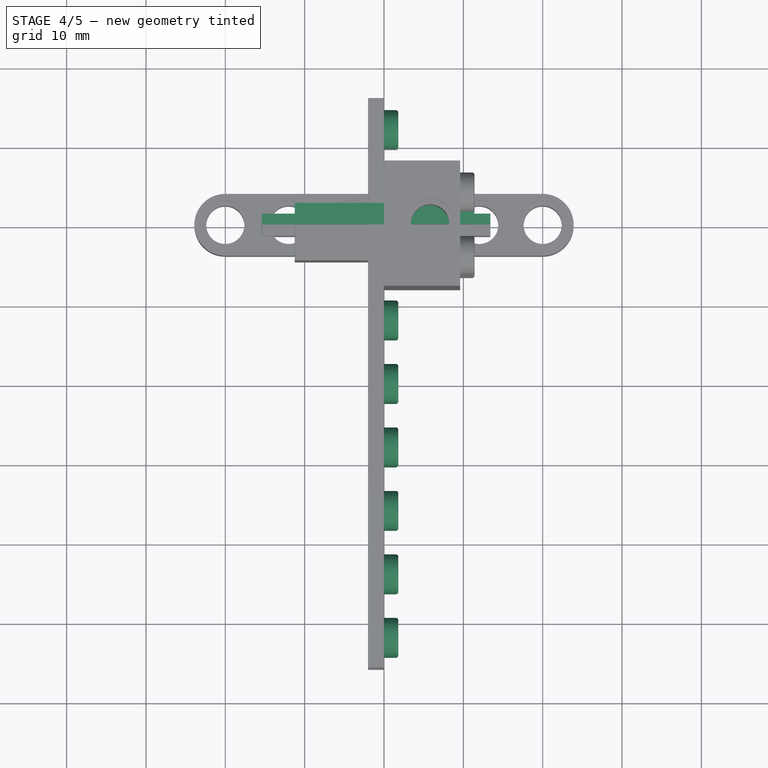
[diagram: stage 4 of 5 — top view after this stage's code; geometry added in this stage tinted green]
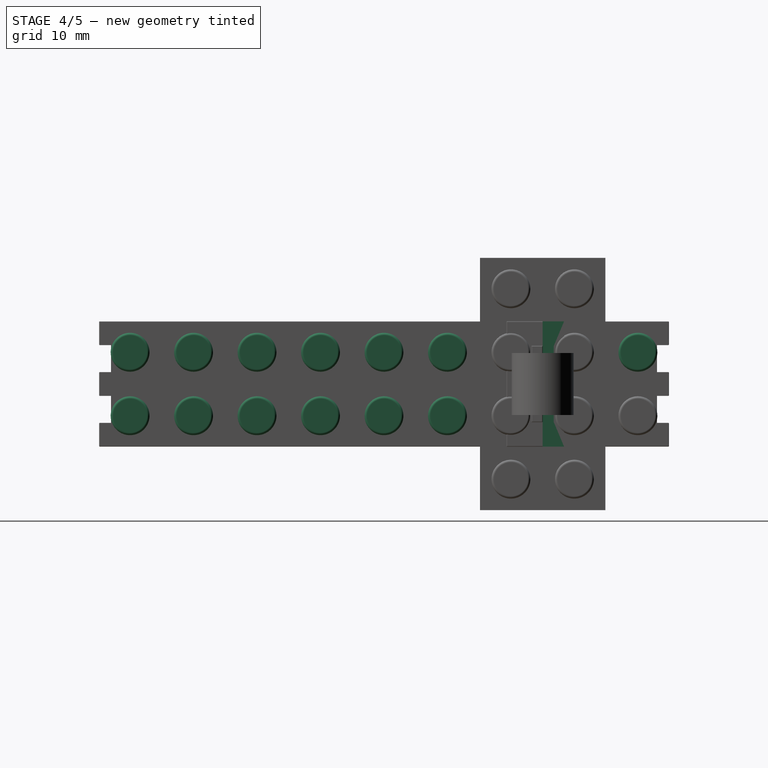
[diagram: stage 4 of 5 — right view after this stage's code; geometry added in this stage tinted green]
FEATURE [PartDesign::LinearPattern] LinearPattern002
  Direction = -> Sketch003 [H_Axis]
  Length = 64
  Occurrences = 9
  Placement = pos=(0,0,0) rot=(0.57735,0.57735,0.57735;2.0944rad)
  Reversed = true
FEATURE [PartDesign::Mirrored] Mirrored
  MirrorPlane = -> Sketch003 [H_Axis]
  Placement = pos=(0,0,0) rot=(0.57735,0.57735,0.57735;2.0944rad)
FEATURE [PartDesign::MultiTransform] MultiTransform
  BaseFeature = -> Pad002
  Originals = -> [Pad002]
  Placement = pos=(0,0,0) rot=(0.57735,0.57735,0.57735;2.0944rad)
  Transformations = -> [LinearPattern002,Mirrored]
FEATURE [Sketcher::SketchObject] Sketch009
  MapMode = 5
  Placement = pos=(0,0,0) rot=(1,0,0;1.5708rad)
  Support = -> [XZ_Plane004]
  sketch-geometry (4):
    g0: LineSegment StartX=-11.25 StartY=7.9 StartZ=0 EndX=11.25 EndY=7.9 EndZ=0
    g1: LineSegment StartX=11.25 StartY=7.9 StartZ=0 EndX=11.25 EndY=-7.9 EndZ=0
    g2: LineSegment StartX=11.25 StartY=-7.9 StartZ=0 EndX=-11.25 EndY=-7.9 EndZ=0
    g3: LineSegment StartX=-11.25 StartY=-7.9 StartZ=0 EndX=-11.25 EndY=7.9 EndZ=0
  constraints (11):
    c: Coincident(g0,g1)
    c: Coincident(g1,g2)
    c: Coincident(g2,g3)
    c: Coincident(g3,g0)
    c: Horizontal(g0)
    c: Horizontal(g2)
    c: Vertical(g1)
    c: DistanceX(g0,g0) = 22.5
    c: DistanceY(g3,g3) = 15.8
    c: Symmetric(g0,g1,g-1)
    c: Vertical(g3)
FEATURE [PartDesign::Pad] Pad007
  Length = 2.7
  Length2 = 100
  Placement = pos=(0,0,0) rot=(1,0,0;1.5708rad)
  Profile = -> Sketch009
  Reversed = true
  Type = 0
FEATURE [Sketcher::SketchObject] Sketch010
  MapMode = 5
  Placement = pos=(11.25,0,0) rot=(0.707107,0,0.707107;3.14159rad)
  Support = -> [Pad007]
  expr: Constraints[20] = val.wall_thick
  sketch-geometry (8):
    g0: LineSegment StartX=-4.8 StartY=0 StartZ=0 EndX=-1.6 EndY=0 EndZ=0
    g1: LineSegment StartX=-1.6 StartY=0 StartZ=0 EndX=-1.6 EndY=-1.4 EndZ=0
    g2: LineSegment StartX=-1.6 StartY=-1.4 StartZ=0 EndX=-4.8 EndY=-1.4 EndZ=0
    g3: LineSegment StartX=-4.8 StartY=-1.4 StartZ=0 EndX=-4.8 EndY=0 EndZ=0
    g4: LineSegment StartX=1.6 StartY=0 StartZ=0 EndX=4.8 EndY=0 EndZ=0
    g5: LineSegment StartX=4.8 StartY=0 StartZ=0 EndX=4.8 EndY=-1.4 EndZ=0
    g6: LineSegment StartX=4.8 StartY=-1.4 StartZ=0 EndX=1.6 EndY=-1.4 EndZ=0
    g7: LineSegment StartX=1.6 StartY=-1.4 StartZ=0 EndX=1.6 EndY=0 EndZ=0
  constraints (23):
    c: Coincident(g0,g1)
    c: Coincident(g1,g2)
    c: Coincident(g2,g3)
    c: Coincident(g3,g0)
    c: Horizontal(g0)
    c: Horizontal(g2)
    c: Vertical(g1)
    c: Vertical(g3)
    c: Coincident(g4,g5)
    c: Coincident(g5,g6)
    c: Coincident(g6,g7)
    c: Coincident(g7,g4)
    c: Horizontal(g4)
    c: Horizontal(g6)
    c: Vertical(g5)
    c: Vertical(g7)
    c: Symmetric(g1,g6,g-2)
    c: PointOnObject(g4,g-1)
    c: Equal(g7,g1)
    c: Equal(g2,g6)
    c: DistanceY(g5,g5) = 1.4
    c: DistanceX(g4,g4) = 3.2
    c: DistanceX(g0,g4) = 3.2
FEATURE [PartDesign::Pad] Pad008
  BaseFeature = -> Pad007
  Length = 2.15
  Length2 = 100
  Placement = pos=(0,0,0) rot=(1,0,0;1.5708rad)
  Profile = -> Sketch010
  Type = 0
FEATURE [Sketcher::SketchObject] Sketch011
  MapMode = 5
  Placement = pos=(-11.25,0,0) rot=(0.707107,0,-0.707107;3.14159rad)
  Support = -> [Pad008]
  expr: Constraints[22] = val.wall_thick
  sketch-geometry (8):
    g0: LineSegment StartX=-4.8 StartY=1e-16 StartZ=0 EndX=-1.6 EndY=1e-16 EndZ=0
    g1: LineSegment StartX=-1.6 StartY=1e-16 StartZ=0 EndX=-1.6 EndY=-1.4 EndZ=0
    g2: LineSegment StartX=-1.6 StartY=-1.4 StartZ=0 EndX=-4.8 EndY=-1.4 EndZ=0
    g3: LineSegment StartX=-4.8 StartY=-1.4 StartZ=0 EndX=-4.8 EndY=0 EndZ=0
    g4: LineSegment StartX=1.6 StartY=0 StartZ=0 EndX=4.8 EndY=0 EndZ=0
    g5: LineSegment StartX=4.8 StartY=0 StartZ=0 EndX=4.8 EndY=-1.4 EndZ=0
    g6: LineSegment StartX=4.8 StartY=-1.4 StartZ=0 EndX=1.6 EndY=-1.4 EndZ=0
    g7: LineSegment StartX=1.6 StartY=-1.4 StartZ=0 EndX=1.6 EndY=0 EndZ=0
  constraints (23):
    c: Coincident(g0,g1)
    c: Coincident(g1,g2)
    c: Coincident(g2,g3)
    c: Coincident(g3,g0)
    c: Horizontal(g0)
    c: Horizontal(g2)
    c: Vertical(g1)
    c: Vertical(g3)
    c: Coincident(g4,g5)
    c: Coincident(g5,g6)
    c: Coincident(g6,g7)
    c: Coincident(g7,g4)
    c: Horizontal(g4)
    c: Horizontal(g6)
    c: Vertical(g5)
    c: Vertical(g7)
    c: Equal(g1,g7)
    c: Equal(g2,g6)
    c: Symmetric(g1,g6,g-2)
    c: PointOnObject(g4,g-1)
    c: DistanceX(g0,g4) = 3.2
    c: DistanceX(g4,g4) = 3.2
    c: DistanceY(g5,g5) = 1.4
FEATURE [PartDesign::Pad] Pad009
  BaseFeature = -> Pad008
  Length = 4.15
  Length2 = 100
  Placement = pos=(0,0,0) rot=(1,0,0;1.5708rad)
  Profile = -> Sketch011
  Type = 0
FEATURE [Sketcher::SketchObject] Sketch012
  MapMode = 5
  Placement = pos=(0,0,0) rot=(1,0,0;1.5708rad)
  Support = -> [Pad009]
  expr: Constraints[0] = val.knob_dia / 2
  sketch-geometry (1):
    g0: Circle CenterX=4 CenterY=4 CenterZ=0 NormalX=0 NormalY=0 NormalZ=1 AngleXU=0 Radius=2.45
  constraints (3):
    c: Radius(g0) = 2.45
    c: DistanceX(g0) = 4
    c: DistanceY(g0) = 4
FEATURE [PartDesign::Pad] Pad010  label="Knob002"
  BaseFeature = -> Pad009
  Length = 1.8
  Length2 = 100
  Placement = pos=(0,0,0) rot=(1,0,0;1.5708rad)
  Profile = -> Sketch012
  Type = 0
  expr: Length = val.knob_height
FEATURE [PartDesign::LinearPattern] LinearPattern004
  Direction = -> Sketch012 [H_Axis]
  Length = 8
  Occurrences = 2
  Placement = pos=(0,0,0) rot=(1,0,0;1.5708rad)
  Reversed = true
FEATURE [PartDesign::Mirrored] Mirrored002
  MirrorPlane = -> Sketch012 [H_Axis]
  Placement = pos=(0,0,0) rot=(1,0,0;1.5708rad)
FEATURE [PartDesign::MultiTransform] MultiTransform002
  BaseFeature = -> Pad010
  Originals = -> [Pad010]
  Placement = pos=(0,0,0) rot=(1,0,0;1.5708rad)
  Transformations = -> [LinearPattern004,Mirrored002]
FEATURE [PartDesign::Fillet] Fillet004
  Base = -> MultiTransform002 [Face34,Face33,Face32,Face31]
  BaseFeature = -> MultiTransform002
  Placement = pos=(0,0,0) rot=(1,0,0;1.5708rad)
  Radius = 0.32
FEATURE [Sketcher::SketchObject] Sketch013
  MapMode = 5
  Placement = pos=(0,2.7,-1.2e-15) rot=(-1,0,0;1.5708rad)
  Support = -> [Fillet004]
  sketch-geometry (1):
    g0: Circle CenterX=0 CenterY=0 CenterZ=0 NormalX=0 NormalY=0 NormalZ=1 AngleXU=0 Radius=1.2
  constraints (3):
    c: DistanceX(g0) = 0
    c: DistanceY(g0) = 0
    c: Radius(g0) = 1.2
FEATURE [PartDesign::Pocket] Pocket002
  BaseFeature = -> Fillet004
  Length = 5
  Length2 = 100
  Placement = pos=(0,0,0) rot=(1,0,0;1.5708rad)
  Profile = -> Sketch013
  Type = 0
FEATURE [PartDesign::Fillet] Fillet
  Base = -> MultiTransform [Face46,Face48,Face61,Face62,Face57,Face58,Face53,Face54,Face56,Face55,Face50,Face51,Face52,Face49,Face60,Face59,Face44,Face42]
  BaseFeature = -> MultiTransform
  Placement = pos=(0,0,0) rot=(0.57735,0.57735,0.57735;2.0944rad)
  Radius = 0.32
FEATURE [PartDesign::Body] Body003  label="Motor Plate"
  Group = -> [Sketch009,Pad007,Sketch010,Pad008,Sketch011,Pad009,Sketch012,Pad010,MultiTransform002,LinearPattern004,Mirrored002,Fillet004,Sketch013,Pocket002,Fillet006]
  Origin = -> Origin004
  Placement = pos=(0,-55.9,0) rot=(0,0,1;0rad)
  Tip = -> Fillet006
FEATURE [PartDesign::Fillet] Fillet008
  Base = -> Fillet [Face14,Face26,Face27,Face8,Face13,Face25,Face20,Face15,Face43]
  BaseFeature = -> Fillet
  Placement = pos=(0,0,0) rot=(0.57735,0.57735,0.57735;2.0944rad)
  Radius = 0.08
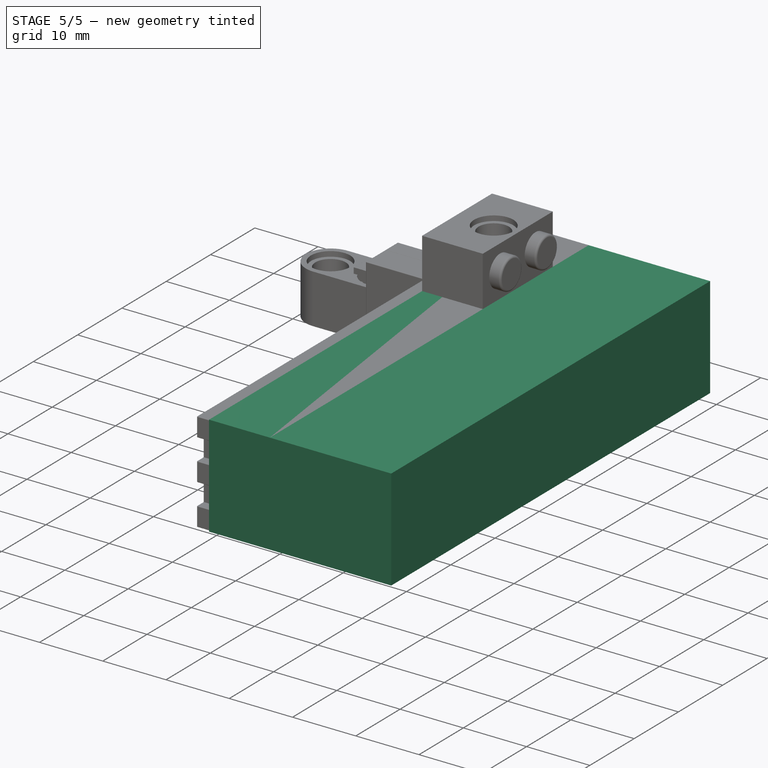
[diagram: stage 5 of 5 — iso view after this stage's code; geometry added in this stage tinted green]
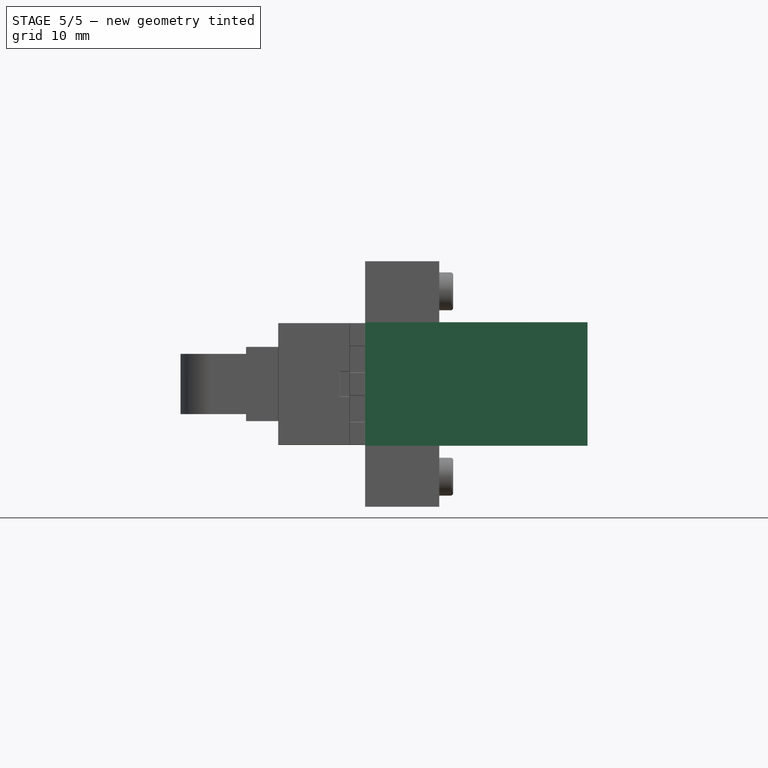
[diagram: stage 5 of 5 — front view after this stage's code; geometry added in this stage tinted green]
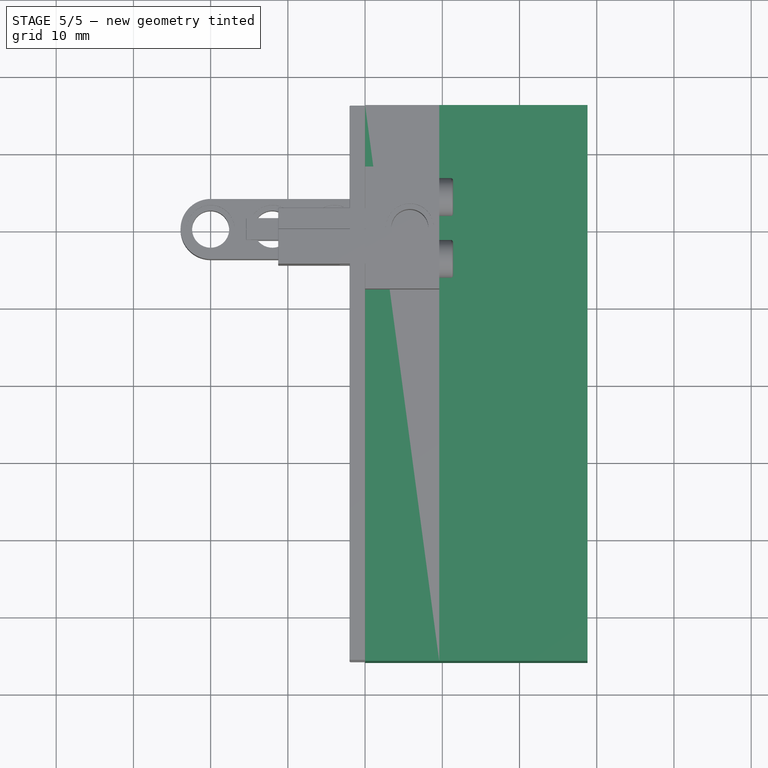
[diagram: stage 5 of 5 — top view after this stage's code; geometry added in this stage tinted green]
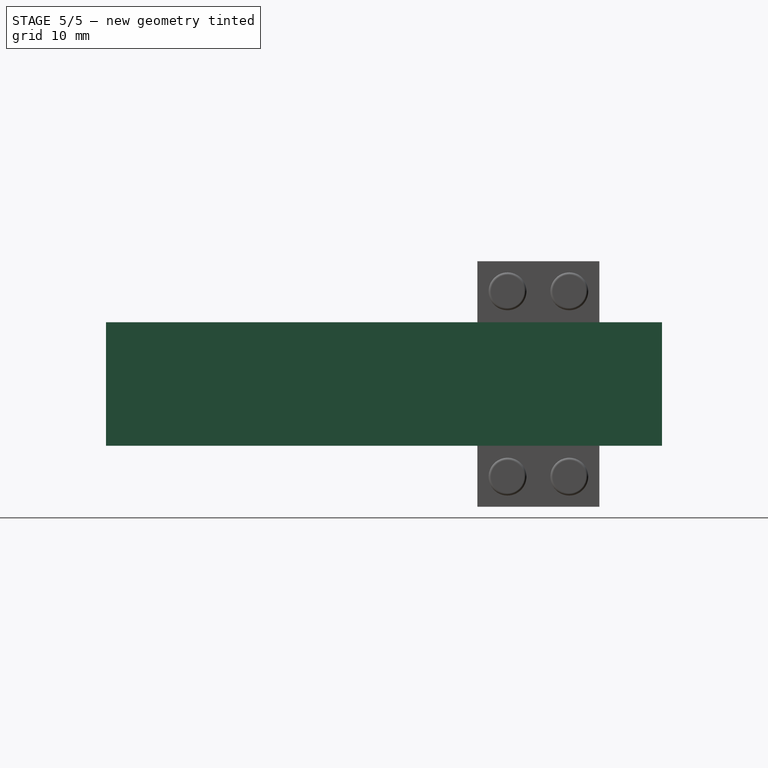
[diagram: stage 5 of 5 — right view after this stage's code; geometry added in this stage tinted green]
FEATURE [Part::Feature] Part__Feature  label="Part 8"
  shape: bbox 15.62 x 23.85 x 20.96 mm, 35 faces (baked)
FEATURE [Part::Feature] Part__Feature001  label="Surface 1"
  shape: bbox 8 x 22.85 x 18.97 mm, 5 faces, 0 solids (baked)
FEATURE [Part::Feature] Part__Feature002  label="Part 7"
  shape: bbox 4.343 x 2 x 0.1 mm, 16 faces (baked)
FEATURE [Part::Feature] Part__Feature003  label="Part 6"
  shape: bbox 4.343 x 2 x 0.1 mm, 16 faces (baked)
FEATURE [Part::Feature] Part__Feature004  label="Part 5"
  shape: bbox 1.8 x 1 x 1.8 mm, 3 faces (baked)
FEATURE [Part::Feature] Part__Feature005  label="Part 4"
  shape: bbox 21.43 x 7.35 x 17.97 mm, 16 faces (baked)
FEATURE [Part::Feature] Part__Feature006  label="Part 3"
  shape: bbox 19.8 x 8.5 x 14.8 mm, 6 faces (baked)
FEATURE [Part::Feature] Part__Feature007  label="Part 2"
  shape: bbox 5.4 x 5.4 x 36.8 mm, 15 faces (baked)
FEATURE [Part::Feature] Part__Feature008  label="M"
  shape: bbox 22.5 x 53.35 x 23.3 mm, 41 faces (baked)
FEATURE [App::Part] Part  label="Motor"
  Group = -> [Part__Feature,Part__Feature001,Part__Feature002,Part__Feature003,Part__Feature004,Part__Feature005,Part__Feature006,Part__Feature007,Part__Feature008]
  Origin = -> Origin
  Placement = pos=(0,0,9.4) rot=(0,0,1;0rad)
FEATURE [Sketcher::SketchObject] Sketch
  MapMode = 5
  Placement = pos=(0,0,0) rot=(0.57735,0.57735,0.57735;2.0944rad)
  Support = -> [YZ_Plane001]
  sketch-geometry (4):
    g0: LineSegment StartX=-56 StartY=8 StartZ=0 EndX=16 EndY=8 EndZ=0
    g1: LineSegment StartX=16 StartY=8 StartZ=0 EndX=16 EndY=-8 EndZ=0
    g2: LineSegment StartX=16 StartY=-8 StartZ=0 EndX=-56 EndY=-8 EndZ=0
    g3: LineSegment StartX=-56 StartY=-8 StartZ=0 EndX=-56 EndY=8 EndZ=0
  constraints (11):
    c: Coincident(g0,g1)
    c: Coincident(g1,g2)
    c: Coincident(g2,g3)
    c: Coincident(g3,g0)
    c: Horizontal(g0)
    c: Horizontal(g2)
    c: Vertical(g3)
    c: DistanceX(g0,g0) = 72
    c: DistanceX(g-1,g1) = 16
    c: Symmetric(g0,g1,g-1)
    c: DistanceY(g1,g1) = 16
FEATURE [PartDesign::Pad] Pad  label="Brick"
  Length = 9.6
  Length2 = 100
  Placement = pos=(0,0,0) rot=(0.57735,0.57735,0.57735;2.0944rad)
  Profile = -> Sketch
  Type = 0
FEATURE [PartDesign::LinearPattern] LinearPattern
  BaseFeature = -> Pad
  Direction = -> Sketch [N_Axis]
  Length = 19.2
  Occurrences = 3
  Originals = -> [Pad]
  Placement = pos=(0,0,0) rot=(0.57735,0.57735,0.57735;2.0944rad)
FEATURE [Sketcher::SketchObject] Sketch017
  MapMode = 5
  Placement = pos=(0,0,0) rot=(0.57735,0.57735,0.57735;2.0944rad)
  Support = -> [YZ_Plane005]
  sketch-geometry (4):
    g0: LineSegment StartX=-55.9 StartY=7.9 StartZ=0 EndX=15.9 EndY=7.9 EndZ=0
    g1: LineSegment StartX=15.9 StartY=7.9 StartZ=0 EndX=15.9 EndY=-7.9 EndZ=0
    g2: LineSegment StartX=15.9 StartY=-7.9 StartZ=0 EndX=-55.9 EndY=-7.9 EndZ=0
    g3: LineSegment StartX=-55.9 StartY=-7.9 StartZ=0 EndX=-55.9 EndY=7.9 EndZ=0
  constraints (11):
    c: Coincident(g0,g1)
    c: Coincident(g1,g2)
    c: Coincident(g2,g3)
    c: Coincident(g3,g0)
    c: Horizontal(g0)
    c: Horizontal(g2)
    c: Vertical(g3)
    c: DistanceY(g1,g1) = 15.8
    c: DistanceX(g0,g0) = 71.8
    c: Symmetric(g0,g1,g-1)
    c: DistanceX(g0) = 15.9
FEATURE [PartDesign::Pad] Pad012  label="Plate002"
  Length = 4
  Length2 = 100
  Placement = pos=(0,0,0) rot=(0.57735,0.57735,0.57735;2.0944rad)
  Profile = -> Sketch017
  Type = 0
FEATURE [Sketcher::SketchObject] Sketch018
  MapMode = 5
  Placement = pos=(0,0,0) rot=(0.57735,0.57735,-0.57735;4.18879rad)
  Support = -> [Pad012]
  expr: Constraints[10] = 15.9mm - val.wall_thick
  expr: Constraints[9] = 71.8mm - 2 * val.wall_thick
  expr: Constraints[8] = 15.8mm - 2 * val.wall_thick
  sketch-geometry (4):
    g0: LineSegment StartX=-54.5 StartY=6.5 StartZ=0 EndX=14.5 EndY=6.5 EndZ=0
    g1: LineSegment StartX=14.5 StartY=6.5 StartZ=0 EndX=14.5 EndY=-6.5 EndZ=0
    g2: LineSegment StartX=14.5 StartY=-6.5 StartZ=0 EndX=-54.5 EndY=-6.5 EndZ=0
    g3: LineSegment StartX=-54.5 StartY=-6.5 StartZ=0 EndX=-54.5 EndY=6.5 EndZ=0
  constraints (11):
    c: Coincident(g0,g1)
    c: Coincident(g1,g2)
    c: Coincident(g2,g3)
    c: Coincident(g3,g0)
    c: Horizontal(g0)
    c: Horizontal(g2)
    c: Vertical(g3)
    c: Symmetric(g0,g1,g-1)
    c: DistanceY(g1,g1) = 13
    c: DistanceX(g0,g0) = 69
    c: DistanceX(g0) = 14.5
FEATURE [PartDesign::Pocket] Pocket005
  BaseFeature = -> Pad012
  Length = 2.2
  Length2 = 100
  Placement = pos=(0,0,0) rot=(0.57735,0.57735,0.57735;2.0944rad)
  Profile = -> Sketch018
  Type = 0
  expr: Length = val.pocket_depth
FEATURE [Sketcher::SketchObject] Sketch019
  MapMode = 5
  Placement = pos=(2.2,-5e-16,5e-16) rot=(0.57735,0.57735,-0.57735;4.18879rad)
  Support = -> [Pocket005]
  expr: Constraints[3] = val.tube_outer_dia / 2
  expr: Constraints[2] = val.tube_inner_dia / 2
  sketch-geometry (2):
    g0: Circle CenterX=8 CenterY=0 CenterZ=0 NormalX=0 NormalY=0 NormalZ=1 AngleXU=0 Radius=3.255
    g1: Circle CenterX=8 CenterY=0 CenterZ=0 NormalX=0 NormalY=0 NormalZ=1 AngleXU=0 Radius=2.45
  constraints (5):
    c: Coincident(g0,g1)
    c: PointOnObject(g0,g-1)
    c: Radius(g1) = 2.45
    c: Radius(g0) = 3.255
    c: DistanceX(g0) = 8
FEATURE [PartDesign::Pad] Pad013
  BaseFeature = -> Pocket005
  Length = 2.2
  Length2 = 100
  Placement = pos=(0,0,0) rot=(0.57735,0.57735,0.57735;2.0944rad)
  Profile = -> Sketch019
  Type = 0
  expr: Length = val.pocket_depth
FEATURE [PartDesign::LinearPattern] LinearPattern005
  BaseFeature = -> Pad013
  Direction = -> Sketch019 [H_Axis]
  Length = 56
  Occurrences = 8
  Originals = -> [Pad013]
  Placement = pos=(0,0,0) rot=(0.57735,0.57735,0.57735;2.0944rad)
  Reversed = true
FEATURE [Sketcher::SketchObject] Sketch020
  MapMode = 5
  Placement = pos=(4,-9e-16,9e-16) rot=(0.57735,0.57735,0.57735;2.0944rad)
  Support = -> [LinearPattern005]
  expr: Constraints[22] = val.wall_thick + 0.1mm
  sketch-geometry (8):
    g0: LineSegment StartX=15.9 StartY=4.9 StartZ=0 EndX=14.4 EndY=4.9 EndZ=0
    g1: LineSegment StartX=14.4 StartY=4.9 StartZ=0 EndX=14.4 EndY=1.5 EndZ=0
    g2: LineSegment StartX=14.4 StartY=1.5 StartZ=0 EndX=15.9 EndY=1.5 EndZ=0
    g3: LineSegment StartX=15.9 StartY=1.5 StartZ=0 EndX=15.9 EndY=4.9 EndZ=0
    g4: LineSegment StartX=15.9 StartY=-1.5 StartZ=0 EndX=14.4 EndY=-1.5 EndZ=0
    g5: LineSegment StartX=14.4 StartY=-1.5 StartZ=0 EndX=14.4 EndY=-4.9 EndZ=0
    g6: LineSegment StartX=14.4 StartY=-4.9 StartZ=0 EndX=15.9 EndY=-4.9 EndZ=0
    g7: LineSegment StartX=15.9 StartY=-4.9 StartZ=0 EndX=15.9 EndY=-1.5 EndZ=0
  constraints (23):
    c: Coincident(g0,g1)
    c: Coincident(g1,g2)
    c: Coincident(g2,g3)
    c: Coincident(g3,g0)
    c: Horizontal(g0)
    c: Horizontal(g2)
    c: Vertical(g1)
    c: Vertical(g3)
    c: Coincident(g4,g5)
    c: Coincident(g5,g6)
    c: Coincident(g6,g7)
    c: Coincident(g7,g4)
    c: Horizontal(g4)
    c: Horizontal(g6)
    c: Vertical(g5)
    c: Vertical(g7)
    c: DistanceX(g0) = 15.9
    c: Symmetric(g4,g2,g-1)
    c: Equal(g2,g4)
    c: Equal(g5,g1)
    c: DistanceY(g3,g3) = 3.4
    c: DistanceY(g4,g2) = 3
    c: DistanceX(g0,g0) = 1.5
FEATURE [PartDesign::Pocket] Pocket006
  BaseFeature = -> LinearPattern005
  Length = 5
  Length2 = 100
  Placement = pos=(0,0,0) rot=(0.57735,0.57735,0.57735;2.0944rad)
  Profile = -> Sketch020
  Type = 0
FEATURE [PartDesign::LinearPattern] LinearPattern006
  BaseFeature = -> Pocket006
  Direction = -> Sketch020 [H_Axis]
  Length = 70.3
  Occurrences = 2
  Originals = -> [Pocket006]
  Placement = pos=(0,0,0) rot=(0.57735,0.57735,0.57735;2.0944rad)
  Reversed = true
  expr: Length = 71.8 - 1.5
FEATURE [PartDesign::Fillet] Fillet005
  Base = -> LinearPattern006 [Face1,Face11,Face58,Face51,Face52,Face54,Face53,Face57,Face56,Face55,Face5,Face2,Face21,Face25,Face12,Face16,Face3,Face39,Face40,Face41,Face37,Face38,Face36,Face35,Face42,Face9,Face34,Face27,Face4,Face32,Edge88,Edge39,Face30,Edge43,Edge85,Edge86,Edge89]
  BaseFeature = -> LinearPattern006
  Placement = pos=(0,0,0) rot=(0.57735,0.57735,0.57735;2.0944rad)
  Radius = 0.08
FEATURE [PartDesign::Body] Body004  label="Bottom Plate"
  Group = -> [Sketch017,Pad012,Sketch018,Pocket005,Sketch019,Pad013,LinearPattern005,Sketch020,Pocket006,LinearPattern006,Fillet005]
  Origin = -> Origin005
  Placement = pos=(-15.4,0,0) rot=(0,0,1;0rad)
  Tip = -> Fillet005
FEATURE [PartDesign::Fillet] Fillet006
  Base = -> Pocket002 [Face12,Face5,Face17,Face14,Face31,Face33,Face32,Face30]
  BaseFeature = -> Pocket002
  Placement = pos=(0,0,0) rot=(1,0,0;1.5708rad)
  Radius = 0.08
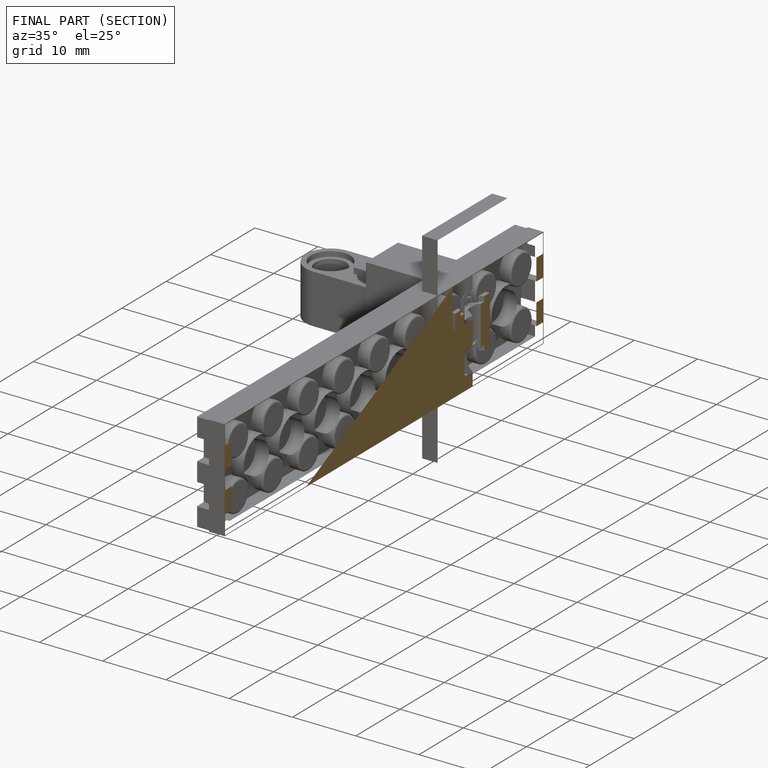
[diagram: finished part — half-section view (interior)]
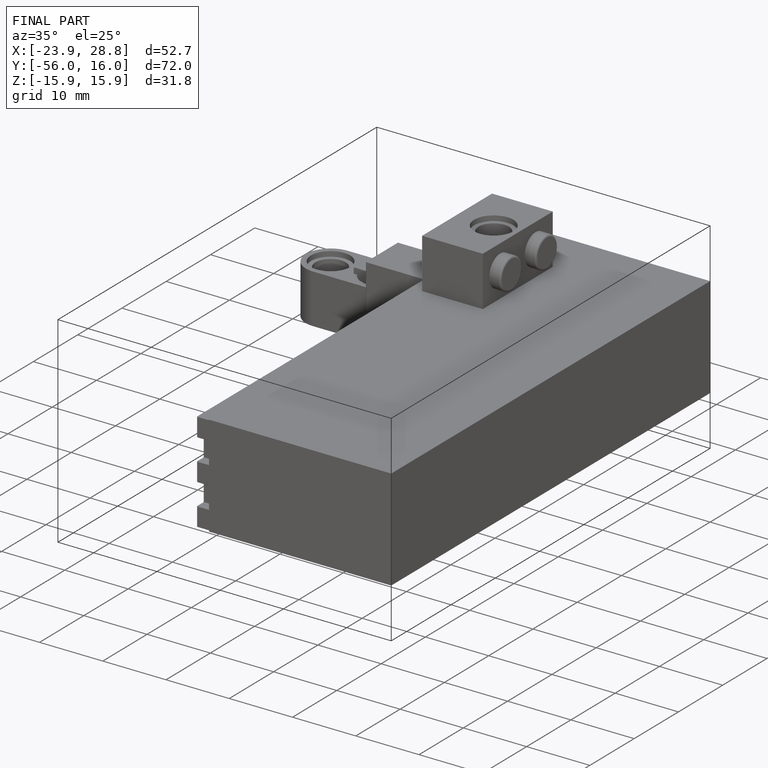
[diagram: finished part — iso view with bounding-box wireframe]
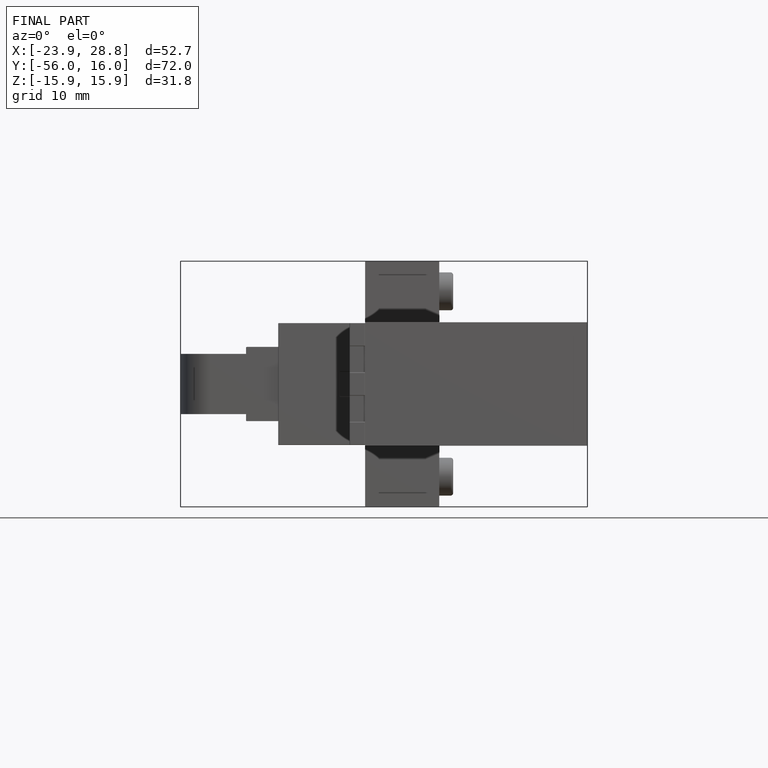
[diagram: finished part — front view with bounding-box wireframe]
